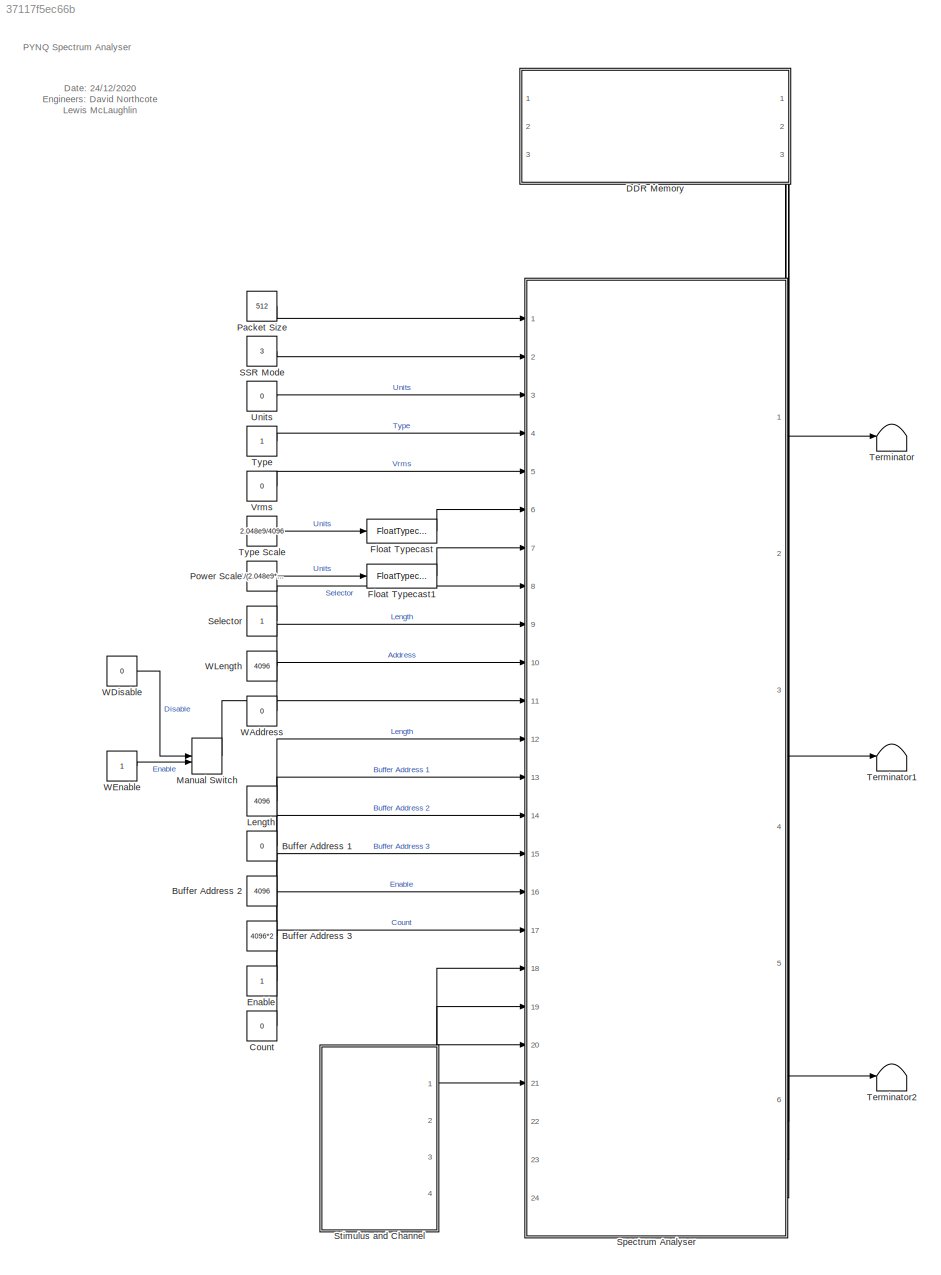
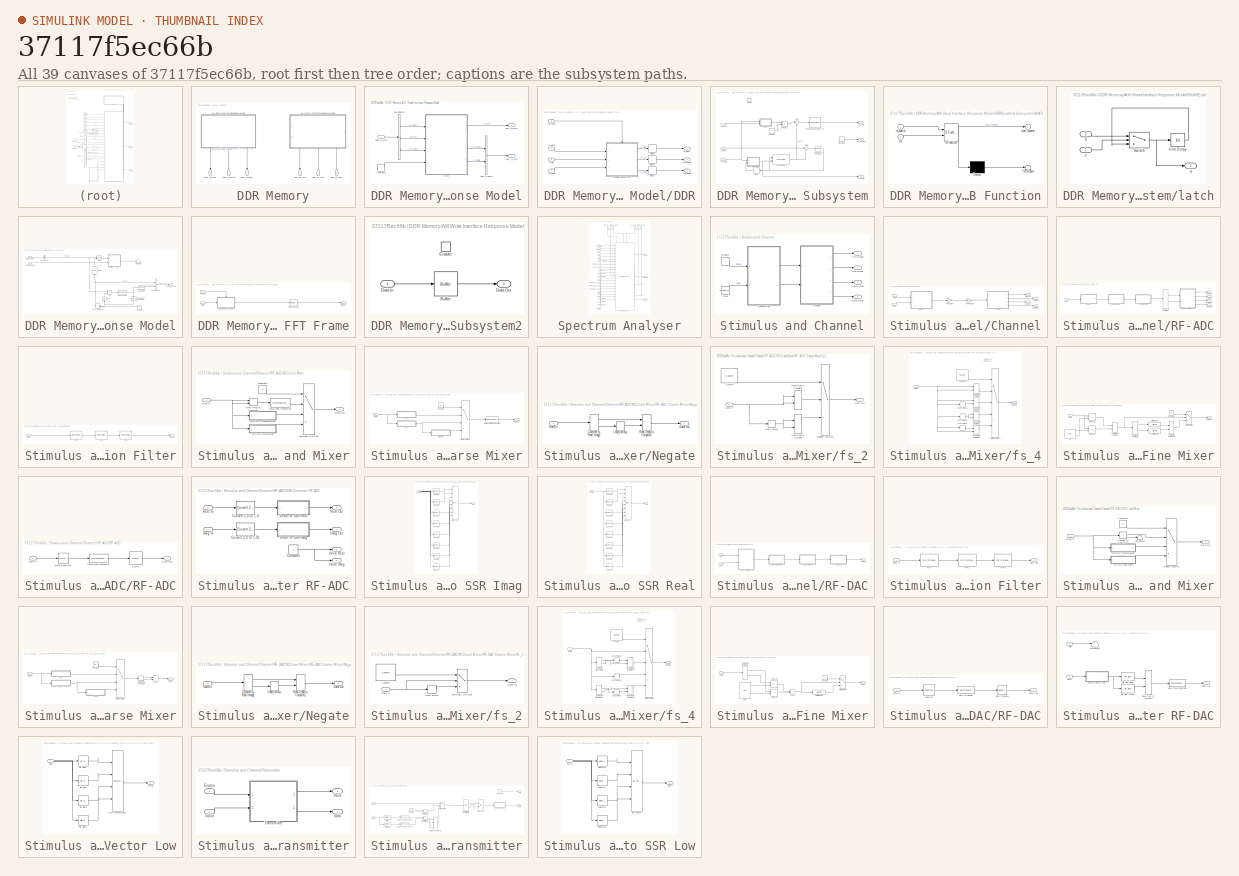
[diagram: thumbnail index - all 39 canvases of the model, root first then tree order]
MODEL slx_37117f5ec66b
KIND model
CONFIG AbsTol = auto
CONFIG EnableMultiTasking = off
CONFIG FixedStep = auto
CONFIG InitFcn = fs = 256e6;
CONFIG MaxStep = auto
CONFIG MinStep = auto
CONFIG RelTol = 1e-3
CONFIG SampleTimeConstraint = Unconstrained
CONFIG Solver = VariableStepAuto
CONFIG SolverName = VariableStepAuto
CONFIG StartTime = 0.0
CONFIG StopTime = 100000/256e6
BLOCK [Constant] Buffer Address 1
  OutDataTypeStr = uint32
  SampleTime = 1/fs
  Value = 0
BLOCK [Constant] Buffer Address 2
  OutDataTypeStr = uint32
  SampleTime = 1/fs
  Value = 4096
BLOCK [Constant] Buffer Address 3
  OutDataTypeStr = uint32
  SampleTime = 1/fs
  Value = 4096*2
BLOCK [Constant] Count
  OutDataTypeStr = uint32
  SampleTime = 1/fs
  Value = 0
BLOCK [SubSystem] DDR Memory
  NameLocation = top
  PortSchema = {"entries":[{"content":{"sides":[{"content":{"connectorIds":[]},"type":"ConnectorPlacement.EquallySpacedRectSide","uuid":"d9e4a1d3-1a90-455f-8481-c9ba23695512"},{"content":{"connectorIds":[],"side":"RIGHT"},"type":"ConnectorPlacement.EquallySpacedRectSide","uuid":"d5cbf6c4-ca28-4b6e-a385-26c8d45a1027"},{"content":{"connectorIds":[],"side":"TOP"},"type":"ConnectorPlacement.EquallySpacedRectSide","u...<+413ch>
  Ports = [3, 3]
  RequestExecContextInheritance = off
BLOCK [SubSystem] DDR Memory/AXI Read Interface Response Model
  NameLocation = top
  PortSchema = {"entries":[{"content":{"sides":[{"content":{"connectorIds":[]},"type":"ConnectorPlacement.EquallySpacedRectSide","uuid":"2b557e1e-8026-43d3-80e6-d6d80e534d60"},{"content":{"connectorIds":["Out1","In1","Out2"],"side":"RIGHT"},"type":"ConnectorPlacement.EquallySpacedRectSide","uuid":"d37ff7b5-bcab-46eb-bf2f-7b890d421095"},{"content":{"connectorIds":[],"side":"TOP"},"type":"ConnectorPlacement.Equall...<+250ch>
  Ports = [1, 2]
  RequestExecContextInheritance = off
  ShowPortLabels = FromPortBlockName
BLOCK [BusCreator] DDR Memory/AXI Read Interface Response Model/Bus Creator
  DisplayOption = bar
  InheritFromInputs = on
  Inputs = 2
  Ports = [2, 1]
BLOCK [BusSelector] DDR Memory/AXI Read Interface Response Model/Bus Selector
  OutputSignals = rd_addr,rd_len,rd_avalid
  Ports = [1, 3]
BLOCK [Constant] DDR Memory/AXI Read Interface Response Model/Constant3
  OutDataTypeStr = boolean
  SampleTime = -1
BLOCK [SubSystem] DDR Memory/AXI Read Interface Response Model/DDR
  Ports = [4, 3]
  RequestExecContextInheritance = off
BLOCK [Delay] DDR Memory/AXI Read Interface Response Model/DDR/Delay
  DelayLength = 3
  InputPortMap = u0
  Ports = [1, 1]
BLOCK [Delay] DDR Memory/AXI Read Interface Response Model/DDR/Delay1
  DelayLength = 3
  InputPortMap = u0
  Ports = [1, 1]
BLOCK [Delay] DDR Memory/AXI Read Interface Response Model/DDR/Delay2
  DelayLength = 1
  InputPortMap = u0
  Ports = [1, 1]
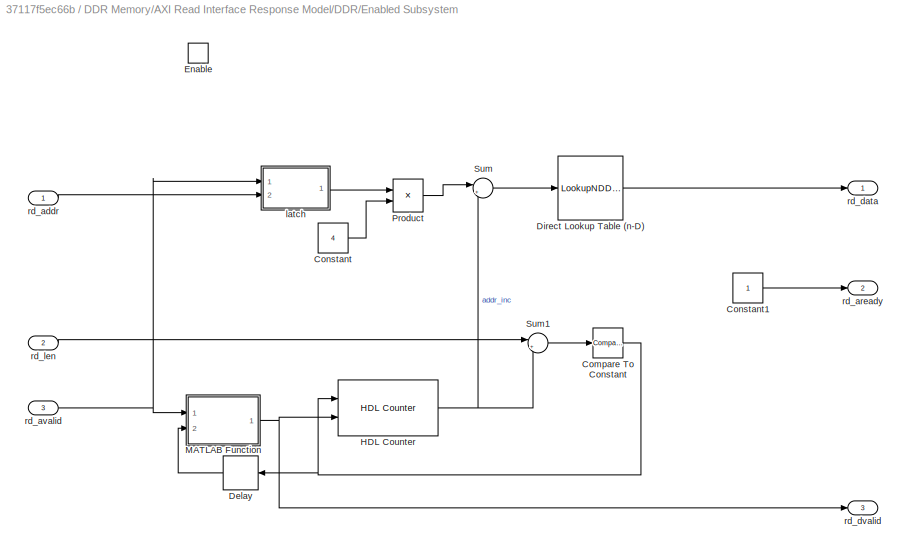
BLOCK [SubSystem] DDR Memory/AXI Read Interface Response Model/DDR/Enabled Subsystem
  Ports = [3, 3, 1]
  RequestExecContextInheritance = off
  TreatAsAtomicUnit = on
BLOCK [Reference] DDR Memory/AXI Read Interface Response Model/DDR/Enabled Subsystem/Compare To Constant  REF=simulink/Logic and Bit
Operations/Compare
To Constant
  Ports = [1, 1]
  SourceBlock = simulink/Logic and Bit\nOperations/Compare\nTo Constant
  SourceProductBaseCode = SL
  SourceType = Compare To Constant
BLOCK [Constant] DDR Memory/AXI Read Interface Response Model/DDR/Enabled Subsystem/Constant
  SampleTime = -1
  Value = 4
BLOCK [Constant] DDR Memory/AXI Read Interface Response Model/DDR/Enabled Subsystem/Constant1
  OutDataTypeStr = boolean
  SampleTime = -1
BLOCK [Delay] DDR Memory/AXI Read Interface Response Model/DDR/Enabled Subsystem/Delay
  DelayLength = 1
  InputPortMap = u0
  NameLocation = top
  Ports = [1, 1]
BLOCK [LookupNDDirect] DDR Memory/AXI Read Interface Response Model/DDR/Enabled Subsystem/Direct Lookup Table (n-D)
  DiagnosticForOutOfRangeInput = Error
  NumberOfTableDimensions = 1
  Ports = [1, 1]
  Table = DDR_DATA
BLOCK [EnablePort] DDR Memory/AXI Read Interface Response Model/DDR/Enabled Subsystem/Enable
  Ports = []
BLOCK [Reference] DDR Memory/AXI Read Interface Response Model/DDR/Enabled Subsystem/HDL Counter  REF=hdlsllib/Sources/HDL Counter
  Ports = [2, 1]
  SourceBlock = hdlsllib/Sources/HDL Counter
  SourceProductBaseCode = SL
  SourceType = HDL Counter
BLOCK [SubSystem] DDR Memory/AXI Read Interface Response Model/DDR/Enabled Subsystem/MATLAB Function
  ErrorFcn = Stateflow.Translate.translate
  PermitHierarchicalResolution = ExplicitOnly
  Ports = [2, 1]
  RequestExecContextInheritance = off
  SFBlockType = MATLAB Function
  TreatAsAtomicUnit = on
BLOCK [Demux] DDR Memory/AXI Read Interface Response Model/DDR/Enabled Subsystem/MATLAB Function/ Demux 
  Outputs = 1
  Ports = [1, 1]
BLOCK [S-Function] DDR Memory/AXI Read Interface Response Model/DDR/Enabled Subsystem/MATLAB Function/ SFunction 
  EnableBusSupport = on
  FunctionName = sf_sfun
  PortCounts = [2 2]
  Ports = [2, 2]
  SFcnIsStateOwnerBlock = off
  SFunctionDeploymentMode = off
  Tag = Stateflow S-Function 1
BLOCK [Terminator] DDR Memory/AXI Read Interface Response Model/DDR/Enabled Subsystem/MATLAB Function/ Terminator 
BLOCK [Inport] DDR Memory/AXI Read Interface Response Model/DDR/Enabled Subsystem/MATLAB Function/rd_avalid
BLOCK [Inport] DDR Memory/AXI Read Interface Response Model/DDR/Enabled Subsystem/MATLAB Function/rst
  Port = 2
BLOCK [Outport] DDR Memory/AXI Read Interface Response Model/DDR/Enabled Subsystem/MATLAB Function/start_counter
  VectorParamsAs1DForOutWhenUnconnected = off
BLOCK [Product] DDR Memory/AXI Read Interface Response Model/DDR/Enabled Subsystem/Product
  Inputs = */
  Ports = [2, 1]
BLOCK [Sum] DDR Memory/AXI Read Interface Response Model/DDR/Enabled Subsystem/Sum
  Inputs = |++
  OutDataTypeStr = uint32
  Ports = [2, 1]
BLOCK [Sum] DDR Memory/AXI Read Interface Response Model/DDR/Enabled Subsystem/Sum1
  Inputs = |+-
  Ports = [2, 1]
BLOCK [SubSystem] DDR Memory/AXI Read Interface Response Model/DDR/Enabled Subsystem/latch
  Ports = [2, 1]
  RequestExecContextInheritance = off
BLOCK [Switch] DDR Memory/AXI Read Interface Response Model/DDR/Enabled Subsystem/latch/Switch
  Criteria = u2 > Threshold
  InputSameDT = off
  SaturateOnIntegerOverflow = off
BLOCK [UnitDelay] DDR Memory/AXI Read Interface Response Model/DDR/Enabled Subsystem/latch/Unit Delay
  HasFrameUpgradeWarning = on
  SampleTime = -1
BLOCK [Inport] DDR Memory/AXI Read Interface Response Model/DDR/Enabled Subsystem/latch/d
  Port = 2
BLOCK [Inport] DDR Memory/AXI Read Interface Response Model/DDR/Enabled Subsystem/latch/e
  OutDataTypeStr = boolean
BLOCK [Outport] DDR Memory/AXI Read Interface Response Model/DDR/Enabled Subsystem/latch/q
  VectorParamsAs1DForOutWhenUnconnected = off
BLOCK [Inport] DDR Memory/AXI Read Interface Response Model/DDR/Enabled Subsystem/rd_addr
BLOCK [Outport] DDR Memory/AXI Read Interface Response Model/DDR/Enabled Subsystem/rd_aready
  Port = 2
  VectorParamsAs1DForOutWhenUnconnected = off
BLOCK [Inport] DDR Memory/AXI Read Interface Response Model/DDR/Enabled Subsystem/rd_avalid
  Port = 3
BLOCK [Outport] DDR Memory/AXI Read Interface Response Model/DDR/Enabled Subsystem/rd_data
  VectorParamsAs1DForOutWhenUnconnected = off
BLOCK [Outport] DDR Memory/AXI Read Interface Response Model/DDR/Enabled Subsystem/rd_dvalid
  Port = 3
  VectorParamsAs1DForOutWhenUnconnected = off
BLOCK [Inport] DDR Memory/AXI Read Interface Response Model/DDR/Enabled Subsystem/rd_len
  Port = 2
BLOCK [Inport] DDR Memory/AXI Read Interface Response Model/DDR/rd_addr
BLOCK [Outport] DDR Memory/AXI Read Interface Response Model/DDR/rd_aready
  Port = 2
  VectorParamsAs1DForOutWhenUnconnected = off
BLOCK [Inport] DDR Memory/AXI Read Interface Response Model/DDR/rd_avalid
  Port = 3
BLOCK [Outport] DDR Memory/AXI Read Interface Response Model/DDR/rd_data
  VectorParamsAs1DForOutWhenUnconnected = off
BLOCK [Outport] DDR Memory/AXI Read Interface Response Model/DDR/rd_dvalid
  Port = 3
  VectorParamsAs1DForOutWhenUnconnected = off
BLOCK [Inport] DDR Memory/AXI Read Interface Response Model/DDR/rd_len
  Port = 2
BLOCK [Inport] DDR Memory/AXI Read Interface Response Model/DDR/rd_ready
  Port = 4
BLOCK [Outport] DDR Memory/AXI Read Interface Response Model/axim_rd_data
  VectorParamsAs1DForOutWhenUnconnected = off
BLOCK [Inport] DDR Memory/AXI Read Interface Response Model/axim_rd_m2s
BLOCK [Outport] DDR Memory/AXI Read Interface Response Model/axim_rd_s2m
  Port = 2
  VectorParamsAs1DForOutWhenUnconnected = off
BLOCK [SubSystem] DDR Memory/AXI Write Interface Response Model
  NameLocation = top
  PortSchema = {"entries":[{"content":{"sides":[{"content":{"connectorIds":[]},"type":"ConnectorPlacement.EquallySpacedRectSide","uuid":"6953abbe-a6d5-4686-b276-b89fe5e6bb23"},{"content":{"connectorIds":[],"side":"RIGHT"},"type":"ConnectorPlacement.EquallySpacedRectSide","uuid":"539ff6ac-c243-4534-87d0-888ff9534a8b"},{"content":{"connectorIds":[],"side":"TOP"},"type":"ConnectorPlacement.EquallySpacedRectSide","u...<+393ch>
  Ports = [2, 1]
  RequestExecContextInheritance = off
BLOCK [Logic] DDR Memory/AXI Write Interface Response Model/AND
  AllPortsSameDT = off
  IconShape = distinctive
  OutDataTypeStr = boolean
  Ports = [2, 1]
BLOCK [BusCreator] DDR Memory/AXI Write Interface Response Model/Bus Creator2
  DisplayOption = bar
  InheritFromInputs = on
  Inputs = 2
  Ports = [2, 1]
BLOCK [BusSelector] DDR Memory/AXI Write Interface Response Model/Bus Selector
  OutputSignals = wr_valid
  Ports = [1, 1]
BLOCK [Reference] DDR Memory/AXI Write Interface Response Model/Compare To Constant  REF=simulink/Logic and Bit
Operations/Compare
To Constant
  Ports = [1, 1]
  SourceBlock = simulink/Logic and Bit\nOperations/Compare\nTo Constant
  SourceProductBaseCode = SL
  SourceType = Compare To Constant
BLOCK [Reference] DDR Memory/AXI Write Interface Response Model/Compare To Constant3  REF=simulink/Logic and Bit
Operations/Compare
To Constant
  NameLocation = left
  Ports = [1, 1]
  SourceBlock = simulink/Logic and Bit\nOperations/Compare\nTo Constant
  SourceProductBaseCode = SL
  SourceType = Compare To Constant
BLOCK [Constant] DDR Memory/AXI Write Interface Response Model/Constant6
  OutDataTypeStr = boolean
  SampleTime = -1
  Value = 0
BLOCK [Delay] DDR Memory/AXI Write Interface Response Model/Delay
  DelayLength = 1
  InitialCondition = 0
  InputPortMap = u0
  NameLocation = right
  Ports = [1, 1]
  UseCircularBuffer = on
  UserDataPersistent = on
BLOCK [Reference] DDR Memory/AXI Write Interface Response Model/HDL Counter  REF=hdlsllib/Sources/HDL Counter
  Ports = [1, 1]
  SourceBlock = hdlsllib/Sources/HDL Counter
  SourceProductBaseCode = SL
  SourceType = HDL Counter
BLOCK [ManualSwitch] DDR Memory/AXI Write Interface Response Model/Manual Switch1
  NameLocation = top
BLOCK [Logic] DDR Memory/AXI Write Interface Response Model/NOT
  AllPortsSameDT = off
  IconShape = distinctive
  NameLocation = right
  Operator = NOT
  OutDataTypeStr = boolean
  Ports = [1, 1]
BLOCK [Logic] DDR Memory/AXI Write Interface Response Model/OR
  AllPortsSameDT = off
  IconShape = distinctive
  Operator = OR
  OutDataTypeStr = boolean
  Ports = [2, 1]
BLOCK [SubSystem] DDR Memory/AXI Write Interface Response Model/Serial to FFT Frame
  Ports = [2, 1]
  RequestExecContextInheritance = off
BLOCK [Inport] DDR Memory/AXI Write Interface Response Model/Serial to FFT Frame/Data In
  Port = 2
BLOCK [Outport] DDR Memory/AXI Write Interface Response Model/Serial to FFT Frame/Data Out
BLOCK [Inport] DDR Memory/AXI Write Interface Response Model/Serial to FFT Frame/Enable
BLOCK [SubSystem] DDR Memory/AXI Write Interface Response Model/Serial to FFT Frame/Enabled Subsystem2
  Ports = [1, 1, 1]
  RequestExecContextInheritance = off
  TreatAsAtomicUnit = on
BLOCK [Buffer] DDR Memory/AXI Write Interface Response Model/Serial to FFT Frame/Enabled Subsystem2/Buffer
  N = N
  OutputFrames = off
BLOCK [Inport] DDR Memory/AXI Write Interface Response Model/Serial to FFT Frame/Enabled Subsystem2/Data In
BLOCK [Outport] DDR Memory/AXI Write Interface Response Model/Serial to FFT Frame/Enabled Subsystem2/Data Out
BLOCK [EnablePort] DDR Memory/AXI Write Interface Response Model/Serial to FFT Frame/Enabled Subsystem2/Enable
  Ports = []
BLOCK [FloatTypecast] DDR Memory/AXI Write Interface Response Model/Serial to FFT Frame/Float Typecast
BLOCK [Terminator] DDR Memory/AXI Write Interface Response Model/Terminator
BLOCK [Inport] DDR Memory/AXI Write Interface Response Model/axim_wr_data
  Port = 2
BLOCK [Inport] DDR Memory/AXI Write Interface Response Model/axim_wr_m2s
BLOCK [Outport] DDR Memory/AXI Write Interface Response Model/axim_wr_s2m
BLOCK [Outport] DDR Memory/axim_rd_data
  Port = 2
BLOCK [Inport] DDR Memory/axim_rd_m2s
BLOCK [Outport] DDR Memory/axim_rd_s2m
BLOCK [Inport] DDR Memory/axim_wr_data
  Port = 3
BLOCK [Inport] DDR Memory/axim_wr_m2s
  Port = 2
BLOCK [Outport] DDR Memory/axim_wr_s2m
  Port = 3
BLOCK [Constant] Enable
  OutDataTypeStr = uint32
  SampleTime = 1/fs
BLOCK [FloatTypecast] Float Typecast
BLOCK [FloatTypecast] Float Typecast1
BLOCK [Constant] Length
  OutDataTypeStr = uint32
  SampleTime = 1/fs
  Value = 4096
BLOCK [ManualSwitch] Manual Switch
  CurrentSetting = 0
BLOCK [Constant] Packet Size
  OutDataTypeStr = uint32
  SampleTime = -1
  Value = 512
BLOCK [Constant] Power Scale
  OutDataTypeStr = single
  SampleTime = -1
  Value = 1/(2.048e9*4096)
BLOCK [Constant] SSR Mode
  OutDataTypeStr = uint32
  SampleTime = -1
  Value = 3
BLOCK [Constant] Selector
  OutDataTypeStr = uint32
  SampleTime = -1
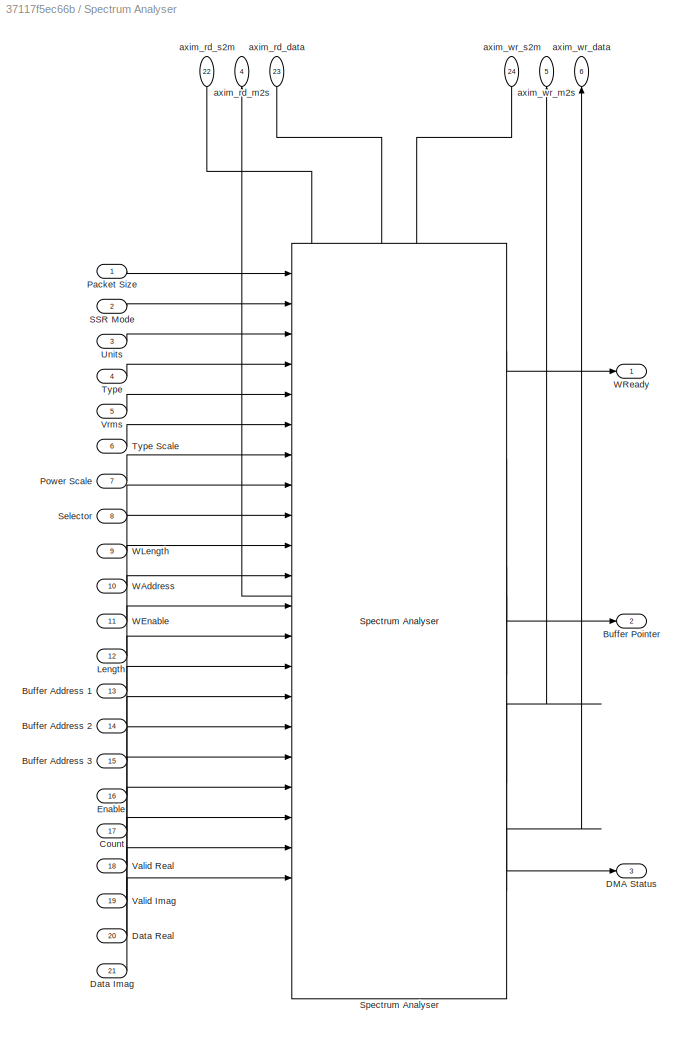
BLOCK [SubSystem] Spectrum Analyser
  PortSchema = {"entries":[{"content":{"sides":[{"content":{"connectorIds":["In1","In2","In3","In4","In5","In6","In7","In8","In9","In10","In11","In12","In13","In14","In15","In16","In17","In18","In19","In20","In21"]},"type":"ConnectorPlacement.EquallySpacedRectSide","uuid":"cc2cc642-11de-4ac0-af05-03fa45094956"},{"content":{"connectorIds":["Out1","Out2","Out3"],"side":"RIGHT"},"type":"ConnectorPlacement.EquallySp...<+429ch>
  Ports = [24, 6]
  RequestExecContextInheritance = off
  TreatAsAtomicUnit = on
BLOCK [Inport] Spectrum Analyser/Buffer Address 1
  Port = 13
BLOCK [Inport] Spectrum Analyser/Buffer Address 2
  Port = 14
BLOCK [Inport] Spectrum Analyser/Buffer Address 3
  Port = 15
BLOCK [Outport] Spectrum Analyser/Buffer Pointer
  Port = 2
BLOCK [Inport] Spectrum Analyser/Count
  Port = 17
BLOCK [Outport] Spectrum Analyser/DMA Status
  Port = 3
BLOCK [Inport] Spectrum Analyser/Data Imag
  Port = 21
BLOCK [Inport] Spectrum Analyser/Data Real
  Port = 20
BLOCK [Inport] Spectrum Analyser/Enable
  Port = 16
BLOCK [Inport] Spectrum Analyser/Length
  Port = 12
BLOCK [Inport] Spectrum Analyser/Packet Size
BLOCK [Inport] Spectrum Analyser/Power Scale
  Port = 7
BLOCK [Inport] Spectrum Analyser/SSR Mode
  Port = 2
BLOCK [Inport] Spectrum Analyser/Selector
  Port = 8
BLOCK [Reference] Spectrum Analyser/Spectrum Analyser  REF=slib_spectrum_analyser/Spectrum Analyser  (lib defined in slx_9446f48c21c4, slx_d429541b2c0d)
  Ports = [24, 6]
  SourceBlock = slib_spectrum_analyser/Spectrum Analyser
  SourceType = SubSystem
BLOCK [Inport] Spectrum Analyser/Type
  Port = 4
BLOCK [Inport] Spectrum Analyser/Type Scale
  Port = 6
BLOCK [Inport] Spectrum Analyser/Units
  Port = 3
BLOCK [Inport] Spectrum Analyser/Valid Imag
  Port = 19
BLOCK [Inport] Spectrum Analyser/Valid Real
  Port = 18
BLOCK [Inport] Spectrum Analyser/Vrms
  Port = 5
BLOCK [Inport] Spectrum Analyser/WAddress
  Port = 10
BLOCK [Inport] Spectrum Analyser/WEnable
  Port = 11
BLOCK [Inport] Spectrum Analyser/WLength
  Port = 9
BLOCK [Outport] Spectrum Analyser/WReady
BLOCK [Inport] Spectrum Analyser/axim_rd_data
  NameLocation = right
  Port = 23
BLOCK [Outport] Spectrum Analyser/axim_rd_m2s
  NameLocation = top
  Port = 4
BLOCK [Inport] Spectrum Analyser/axim_rd_s2m
  NameLocation = left
  Port = 22
BLOCK [Outport] Spectrum Analyser/axim_wr_data
  NameLocation = right
  Port = 6
BLOCK [Outport] Spectrum Analyser/axim_wr_m2s
  NameLocation = top
  Port = 5
BLOCK [Inport] Spectrum Analyser/axim_wr_s2m
  NameLocation = left
  Port = 24
BLOCK [SubSystem] Stimulus and Channel
  Ports = [0, 4]
  RequestExecContextInheritance = off
BLOCK [SubSystem] Stimulus and Channel/Channel
  Ports = [2, 4]
  RequestExecContextInheritance = off
BLOCK [Inport] Stimulus and Channel/Channel/Data
  Port = 2
BLOCK [Outport] Stimulus and Channel/Channel/Data Imag
  Port = 4
BLOCK [Outport] Stimulus and Channel/Channel/Data Real
  Port = 2
BLOCK [SubSystem] Stimulus and Channel/Channel/RF-ADC
  Ports = [1, 4]
  RequestExecContextInheritance = off
BLOCK [ComplexToRealImag] Stimulus and Channel/Channel/RF-ADC/Complex to Real-Imag
  Ports = [1, 2]
BLOCK [Outport] Stimulus and Channel/Channel/RF-ADC/Data Imag
  Port = 4
  VectorParamsAs1DForOutWhenUnconnected = off
BLOCK [Inport] Stimulus and Channel/Channel/RF-ADC/Data In
BLOCK [Outport] Stimulus and Channel/Channel/RF-ADC/Data Real
  Port = 3
  VectorParamsAs1DForOutWhenUnconnected = off
BLOCK [SubSystem] Stimulus and Channel/Channel/RF-ADC/Decimation Filter
  Ports = [1, 1]
  RequestExecContextInheritance = off
BLOCK [Inport] Stimulus and Channel/Channel/RF-ADC/Decimation Filter/Data In
BLOCK [Outport] Stimulus and Channel/Channel/RF-ADC/Decimation Filter/Data Out
  VectorParamsAs1DForOutWhenUnconnected = off
BLOCK [Reference] Stimulus and Channel/Channel/RF-ADC/Decimation Filter/FIR 0  REF=dspmlti4/FIR
Decimation
  Ports = [1, 1]
  SourceBlock = dspmlti4/FIR\nDecimation
  SourceProductBaseCode = DS
  SourceType = FIR Decimation
  UserDataPersistent = on
BLOCK [Reference] Stimulus and Channel/Channel/RF-ADC/Decimation Filter/FIR 1  REF=dspmlti4/FIR
Decimation
  Commented = through
  Ports = [1, 1]
  SourceBlock = dspmlti4/FIR\nDecimation
  SourceProductBaseCode = DS
  SourceType = FIR Decimation
  UserDataPersistent = on
BLOCK [Reference] Stimulus and Channel/Channel/RF-ADC/Decimation Filter/FIR 2  REF=dspmlti4/FIR
Decimation
  Commented = through
  Ports = [1, 1]
  SourceBlock = dspmlti4/FIR\nDecimation
  SourceProductBaseCode = DS
  SourceType = FIR Decimation
  UserDataPersistent = on
BLOCK [SubSystem] Stimulus and Channel/Channel/RF-ADC/NCO and Mixer
  Ports = [1, 1]
  RequestExecContextInheritance = off
BLOCK [Constant] Stimulus and Channel/Channel/RF-ADC/NCO and Mixer/Constant1
  OutDataTypeStr = fixdt(0,2,0)
  SampleTime = -1
  Value = m
BLOCK [Inport] Stimulus and Channel/Channel/RF-ADC/NCO and Mixer/Data In
BLOCK [Outport] Stimulus and Channel/Channel/RF-ADC/NCO and Mixer/Data Out
  VectorParamsAs1DForOutWhenUnconnected = off
BLOCK [DataTypeConversion] Stimulus and Channel/Channel/RF-ADC/NCO and Mixer/Data Type Conversion
  OutDataTypeStr = fixdt(1,16,15)
  RndMeth = Floor
  SaturateOnIntegerOverflow = off
BLOCK [MultiPortSwitch] Stimulus and Channel/Channel/RF-ADC/NCO and Mixer/Multiport Switch1
  DataPortOrder = Zero-based contiguous
  InputSameDT = off
  Ports = [4, 1]
  SaturateOnIntegerOverflow = off
  zeroidx = on
BLOCK [SubSystem] Stimulus and Channel/Channel/RF-ADC/NCO and Mixer/RF-ADC Coarse Mixer
  Ports = [1, 1]
  RequestExecContextInheritance = off
BLOCK [Constant] Stimulus and Channel/Channel/RF-ADC/NCO and Mixer/RF-ADC Coarse Mixer/Constant
  OutDataTypeStr = fixdt(0,2,0)
  SampleTime = -1
  Value = mc
BLOCK [Inport] Stimulus and Channel/Channel/RF-ADC/NCO and Mixer/RF-ADC Coarse Mixer/Data In
BLOCK [Outport] Stimulus and Channel/Channel/RF-ADC/NCO and Mixer/RF-ADC Coarse Mixer/Data Out
  VectorParamsAs1DForOutWhenUnconnected = off
BLOCK [DataTypeConversion] Stimulus and Channel/Channel/RF-ADC/NCO and Mixer/RF-ADC Coarse Mixer/Data Type Conversion
  OutDataTypeStr = fixdt(1,16,15)
  RndMeth = Floor
  SaturateOnIntegerOverflow = off
BLOCK [MultiPortSwitch] Stimulus and Channel/Channel/RF-ADC/NCO and Mixer/RF-ADC Coarse Mixer/Multiport Switch1
  DataPortOrder = Zero-based contiguous
  InputSameDT = off
  Ports = [4, 1]
  SaturateOnIntegerOverflow = off
  zeroidx = on
BLOCK [SubSystem] Stimulus and Channel/Channel/RF-ADC/NCO and Mixer/RF-ADC Coarse Mixer/Negate
  Ports = [1, 1]
  RequestExecContextInheritance = off
BLOCK [ComplexToRealImag] Stimulus and Channel/Channel/RF-ADC/NCO and Mixer/RF-ADC Coarse Mixer/Negate/Complex to Real-Imag2
  Ports = [1, 2]
BLOCK [Inport] Stimulus and Channel/Channel/RF-ADC/NCO and Mixer/RF-ADC Coarse Mixer/Negate/Data In
BLOCK [Outport] Stimulus and Channel/Channel/RF-ADC/NCO and Mixer/RF-ADC Coarse Mixer/Negate/Data Out
  VectorParamsAs1DForOutWhenUnconnected = off
BLOCK [RealImagToComplex] Stimulus and Channel/Channel/RF-ADC/NCO and Mixer/RF-ADC Coarse Mixer/Negate/Real-Imag to Complex1
  Ports = [2, 1]
BLOCK [UnaryMinus] Stimulus and Channel/Channel/RF-ADC/NCO and Mixer/RF-ADC Coarse Mixer/Negate/Unary Minus
BLOCK [SubSystem] Stimulus and Channel/Channel/RF-ADC/NCO and Mixer/RF-ADC Coarse Mixer/fs_2
  Ports = [1, 1]
  RequestExecContextInheritance = off
BLOCK [Reference] Stimulus and Channel/Channel/RF-ADC/NCO and Mixer/RF-ADC Coarse Mixer/fs_2/Counter  REF=dspswit3/Counter
  Ports = [0, 1]
  SourceBlock = dspswit3/Counter
  SourceProductBaseCode = DS
  SourceType = Counter
BLOCK [Inport] Stimulus and Channel/Channel/RF-ADC/NCO and Mixer/RF-ADC Coarse Mixer/fs_2/Data In
BLOCK [Outport] Stimulus and Channel/Channel/RF-ADC/NCO and Mixer/RF-ADC Coarse Mixer/fs_2/Data Out
  VectorParamsAs1DForOutWhenUnconnected = off
BLOCK [MultiPortSwitch] Stimulus and Channel/Channel/RF-ADC/NCO and Mixer/RF-ADC Coarse Mixer/fs_2/Multiport Switch2
  DataPortOrder = Zero-based contiguous
  InputSameDT = off
  Inputs = 2
  Ports = [3, 1]
  SaturateOnIntegerOverflow = off
  zeroidx = on
BLOCK [RealImagToComplex] Stimulus and Channel/Channel/RF-ADC/NCO and Mixer/RF-ADC Coarse Mixer/fs_2/Real-Imag to Complex
  Ports = [2, 1]
BLOCK [RealImagToComplex] Stimulus and Channel/Channel/RF-ADC/NCO and Mixer/RF-ADC Coarse Mixer/fs_2/Real-Imag to Complex1
  Ports = [2, 1]
BLOCK [UnaryMinus] Stimulus and Channel/Channel/RF-ADC/NCO and Mixer/RF-ADC Coarse Mixer/fs_2/Unary Minus1
BLOCK [SubSystem] Stimulus and Channel/Channel/RF-ADC/NCO and Mixer/RF-ADC Coarse Mixer/fs_4
  Ports = [1, 1]
  RequestExecContextInheritance = off
BLOCK [Reference] Stimulus and Channel/Channel/RF-ADC/NCO and Mixer/RF-ADC Coarse Mixer/fs_4/Counter  REF=dspswit3/Counter
  Ports = [0, 1]
  SourceBlock = dspswit3/Counter
  SourceProductBaseCode = DS
  SourceType = Counter
BLOCK [Inport] Stimulus and Channel/Channel/RF-ADC/NCO and Mixer/RF-ADC Coarse Mixer/fs_4/Data In
BLOCK [Outport] Stimulus and Channel/Channel/RF-ADC/NCO and Mixer/RF-ADC Coarse Mixer/fs_4/Data Out
  VectorParamsAs1DForOutWhenUnconnected = off
BLOCK [MultiPortSwitch] Stimulus and Channel/Channel/RF-ADC/NCO and Mixer/RF-ADC Coarse Mixer/fs_4/Multiport Switch2
  DataPortOrder = Zero-based contiguous
  InputSameDT = off
  Inputs = 4
  Ports = [5, 1]
  SaturateOnIntegerOverflow = off
  zeroidx = on
BLOCK [RealImagToComplex] Stimulus and Channel/Channel/RF-ADC/NCO and Mixer/RF-ADC Coarse Mixer/fs_4/Real-Imag to Complex1
  Ports = [2, 1]
BLOCK [RealImagToComplex] Stimulus and Channel/Channel/RF-ADC/NCO and Mixer/RF-ADC Coarse Mixer/fs_4/Real-Imag to Complex2
  Ports = [2, 1]
BLOCK [RealImagToComplex] Stimulus and Channel/Channel/RF-ADC/NCO and Mixer/RF-ADC Coarse Mixer/fs_4/Real-Imag to Complex3
  Ports = [2, 1]
BLOCK [RealImagToComplex] Stimulus and Channel/Channel/RF-ADC/NCO and Mixer/RF-ADC Coarse Mixer/fs_4/Real-Imag to Complex4
  Ports = [2, 1]
BLOCK [UnaryMinus] Stimulus and Channel/Channel/RF-ADC/NCO and Mixer/RF-ADC Coarse Mixer/fs_4/Unary Minus
BLOCK [UnaryMinus] Stimulus and Channel/Channel/RF-ADC/NCO and Mixer/RF-ADC Coarse Mixer/fs_4/Unary Minus1
BLOCK [UnaryMinus] Stimulus and Channel/Channel/RF-ADC/NCO and Mixer/RF-ADC Coarse Mixer/fs_4/Unary Minus2
BLOCK [SubSystem] Stimulus and Channel/Channel/RF-ADC/NCO and Mixer/RF-ADC Fine Mixer
  Ports = [1, 1]
  RequestExecContextInheritance = off
BLOCK [ComplexToRealImag] Stimulus and Channel/Channel/RF-ADC/NCO and Mixer/RF-ADC Fine Mixer/Complex to Real-Imag
  Ports = [1, 2]
BLOCK [Constant] Stimulus and Channel/Channel/RF-ADC/NCO and Mixer/RF-ADC Fine Mixer/Constant
  SampleTime = -1
  Value = 0
BLOCK [Inport] Stimulus and Channel/Channel/RF-ADC/NCO and Mixer/RF-ADC Fine Mixer/Data In
BLOCK [Outport] Stimulus and Channel/Channel/RF-ADC/NCO and Mixer/RF-ADC Fine Mixer/Data Out
  VectorParamsAs1DForOutWhenUnconnected = off
BLOCK [MultiPortSwitch] Stimulus and Channel/Channel/RF-ADC/NCO and Mixer/RF-ADC Fine Mixer/Multiport Switch
  DataPortOrder = Zero-based contiguous
  InputSameDT = off
  Inputs = 2
  Ports = [3, 1]
  SaturateOnIntegerOverflow = off
  zeroidx = on
BLOCK [Reference] Stimulus and Channel/Channel/RF-ADC/NCO and Mixer/RF-ADC Fine Mixer/NCO  REF=dspsigops/NCO
  Ports = [0, 2]
  SourceBlock = dspsigops/NCO
  SourceProductBaseCode = DS
  SourceType = NCO
BLOCK [Product] Stimulus and Channel/Channel/RF-ADC/NCO and Mixer/RF-ADC Fine Mixer/Product
  OutDataTypeStr = fixdt(1,16,15)
  Ports = [2, 1]
BLOCK [Product] Stimulus and Channel/Channel/RF-ADC/NCO and Mixer/RF-ADC Fine Mixer/Product1
  OutDataTypeStr = fixdt(1,16,15)
  Ports = [2, 1]
BLOCK [RealImagToComplex] Stimulus and Channel/Channel/RF-ADC/NCO and Mixer/RF-ADC Fine Mixer/Real-Imag to Complex
  Ports = [2, 1]
BLOCK [RealImagToComplex] Stimulus and Channel/Channel/RF-ADC/NCO and Mixer/RF-ADC Fine Mixer/Real-Imag to Complex1
  Ports = [2, 1]
BLOCK [ArithShift] Stimulus and Channel/Channel/RF-ADC/NCO and Mixer/RF-ADC Fine Mixer/Shift Arithmetic
  BitShiftDirection = Right
  BitShiftNumber = 1
  InputPortMap = u0
  Ports = [1, 1]
BLOCK [ArithShift] Stimulus and Channel/Channel/RF-ADC/NCO and Mixer/RF-ADC Fine Mixer/Shift Arithmetic1
  BitShiftDirection = Right
  BitShiftNumber = 1
  InputPortMap = u0
  Ports = [1, 1]
BLOCK [RealImagToComplex] Stimulus and Channel/Channel/RF-ADC/NCO and Mixer/Real-Imag to Complex
  Ports = [2, 1]
BLOCK [SubSystem] Stimulus and Channel/Channel/RF-ADC/RF-ADC
  Ports = [1, 1]
  RequestExecContextInheritance = off
BLOCK [Buffer] Stimulus and Channel/Channel/RF-ADC/RF-ADC/Buffer
  N = ssr
  OutputFrames = off
BLOCK [Inport] Stimulus and Channel/Channel/RF-ADC/RF-ADC/Data In
BLOCK [Outport] Stimulus and Channel/Channel/RF-ADC/RF-ADC/Data Out
  VectorParamsAs1DForOutWhenUnconnected = off
BLOCK [DataTypeConversion] Stimulus and Channel/Channel/RF-ADC/RF-ADC/Data Type Conversion
  OutDataTypeStr = fixdt(1,12,11)
  RndMeth = Floor
BLOCK [RateTransition] Stimulus and Channel/Channel/RF-ADC/RF-ADC/Rate Transition
  OutPortSampleTime = 1/fs
BLOCK [SubSystem] Stimulus and Channel/Channel/RF-ADC/SSR Converter RF-ADC
  Ports = [2, 4]
  RequestExecContextInheritance = off
BLOCK [Constant] Stimulus and Channel/Channel/RF-ADC/SSR Converter RF-ADC/Constant
  OutDataTypeStr = boolean
  SampleTime = -1
BLOCK [Reference] Stimulus and Channel/Channel/RF-ADC/SSR Converter RF-ADC/Convert 2-D to 1-D  REF=dspsigattribs/Convert 2-D to 1-D
  Ports = [1, 1]
  SourceBlock = dspsigattribs/Convert 2-D to 1-D
  SourceProductBaseCode = DS
  SourceType = Convert 2-D to 1-D
BLOCK [Reference] Stimulus and Channel/Channel/RF-ADC/SSR Converter RF-ADC/Convert 2-D to 1-D1  REF=dspsigattribs/Convert 2-D to 1-D
  Ports = [1, 1]
  SourceBlock = dspsigattribs/Convert 2-D to 1-D
  SourceProductBaseCode = DS
  SourceType = Convert 2-D to 1-D
BLOCK [Inport] Stimulus and Channel/Channel/RF-ADC/SSR Converter RF-ADC/Imag In
  Port = 2
BLOCK [Outport] Stimulus and Channel/Channel/RF-ADC/SSR Converter RF-ADC/Imag Out
  Port = 4
BLOCK [Inport] Stimulus and Channel/Channel/RF-ADC/SSR Converter RF-ADC/Real In
BLOCK [Outport] Stimulus and Channel/Channel/RF-ADC/SSR Converter RF-ADC/Real Out
  Port = 3
BLOCK [Outport] Stimulus and Channel/Channel/RF-ADC/SSR Converter RF-ADC/Valid Imag
  Port = 2
BLOCK [Outport] Stimulus and Channel/Channel/RF-ADC/SSR Converter RF-ADC/Valid Real
BLOCK [SubSystem] Stimulus and Channel/Channel/RF-ADC/SSR Converter RF-ADC/Vector to SSR Imag
  Ports = [1, 1]
  RequestExecContextInheritance = off
BLOCK [Reference] Stimulus and Channel/Channel/RF-ADC/SSR Converter RF-ADC/Vector to SSR Imag/Bit Concat  REF=hdlsllib/Logic and Bit
Operations/Bit Concat
  Ports = [8, 1]
  SourceBlock = hdlsllib/Logic and Bit\nOperations/Bit Concat
  SourceProductBaseCode = SL
  SourceType = Bit Concat
BLOCK [Outport] Stimulus and Channel/Channel/RF-ADC/SSR Converter RF-ADC/Vector to SSR Imag/SSR
BLOCK [Selector] Stimulus and Channel/Channel/RF-ADC/SSR Converter RF-ADC/Vector to SSR Imag/Selector0
  IndexOptions = Index vector (dialog)
  Indices = 8
  InputPortWidth = 8
  OutputSizes = 1
  Ports = [1, 1]
BLOCK [Selector] Stimulus and Channel/Channel/RF-ADC/SSR Converter RF-ADC/Vector to SSR Imag/Selector1
  IndexOptions = Index vector (dialog)
  Indices = 7
  InputPortWidth = 8
  OutputSizes = 1
  Ports = [1, 1]
BLOCK [Selector] Stimulus and Channel/Channel/RF-ADC/SSR Converter RF-ADC/Vector to SSR Imag/Selector2
  IndexOptions = Index vector (dialog)
  Indices = 6
  InputPortWidth = 8
  OutputSizes = 1
  Ports = [1, 1]
BLOCK [Selector] Stimulus and Channel/Channel/RF-ADC/SSR Converter RF-ADC/Vector to SSR Imag/Selector3
  IndexOptions = Index vector (dialog)
  Indices = 5
  InputPortWidth = 8
  OutputSizes = 1
  Ports = [1, 1]
BLOCK [Selector] Stimulus and Channel/Channel/RF-ADC/SSR Converter RF-ADC/Vector to SSR Imag/Selector4
  IndexOptions = Index vector (dialog)
  Indices = 4
  InputPortWidth = 8
  OutputSizes = 1
  Ports = [1, 1]
BLOCK [Selector] Stimulus and Channel/Channel/RF-ADC/SSR Converter RF-ADC/Vector to SSR Imag/Selector5
  IndexOptions = Index vector (dialog)
  Indices = 3
  InputPortWidth = 8
  OutputSizes = 1
  Ports = [1, 1]
BLOCK [Selector] Stimulus and Channel/Channel/RF-ADC/SSR Converter RF-ADC/Vector to SSR Imag/Selector6
  IndexOptions = Index vector (dialog)
  Indices = 2
  InputPortWidth = 8
  OutputSizes = 1
  Ports = [1, 1]
BLOCK [Selector] Stimulus and Channel/Channel/RF-ADC/SSR Converter RF-ADC/Vector to SSR Imag/Selector7
  IndexOptions = Index vector (dialog)
  Indices = 1
  InputPortWidth = 8
  OutputSizes = 1
  Ports = [1, 1]
BLOCK [Inport] Stimulus and Channel/Channel/RF-ADC/SSR Converter RF-ADC/Vector to SSR Imag/Vector
BLOCK [SubSystem] Stimulus and Channel/Channel/RF-ADC/SSR Converter RF-ADC/Vector to SSR Real
  Ports = [1, 1]
  RequestExecContextInheritance = off
BLOCK [Reference] Stimulus and Channel/Channel/RF-ADC/SSR Converter RF-ADC/Vector to SSR Real/Bit Concat  REF=hdlsllib/Logic and Bit
Operations/Bit Concat
  Ports = [8, 1]
  SourceBlock = hdlsllib/Logic and Bit\nOperations/Bit Concat
  SourceProductBaseCode = SL
  SourceType = Bit Concat
BLOCK [Outport] Stimulus and Channel/Channel/RF-ADC/SSR Converter RF-ADC/Vector to SSR Real/SSR
BLOCK [Selector] Stimulus and Channel/Channel/RF-ADC/SSR Converter RF-ADC/Vector to SSR Real/Selector0
  IndexOptions = Index vector (dialog)
  Indices = 8
  InputPortWidth = 8
  OutputSizes = 1
  Ports = [1, 1]
BLOCK [Selector] Stimulus and Channel/Channel/RF-ADC/SSR Converter RF-ADC/Vector to SSR Real/Selector1
  IndexOptions = Index vector (dialog)
  Indices = 7
  InputPortWidth = 8
  OutputSizes = 1
  Ports = [1, 1]
BLOCK [Selector] Stimulus and Channel/Channel/RF-ADC/SSR Converter RF-ADC/Vector to SSR Real/Selector2
  IndexOptions = Index vector (dialog)
  Indices = 6
  InputPortWidth = 8
  OutputSizes = 1
  Ports = [1, 1]
BLOCK [Selector] Stimulus and Channel/Channel/RF-ADC/SSR Converter RF-ADC/Vector to SSR Real/Selector3
  IndexOptions = Index vector (dialog)
  Indices = 5
  InputPortWidth = 8
  OutputSizes = 1
  Ports = [1, 1]
BLOCK [Selector] Stimulus and Channel/Channel/RF-ADC/SSR Converter RF-ADC/Vector to SSR Real/Selector4
  IndexOptions = Index vector (dialog)
  Indices = 4
  InputPortWidth = 8
  OutputSizes = 1
  Ports = [1, 1]
BLOCK [Selector] Stimulus and Channel/Channel/RF-ADC/SSR Converter RF-ADC/Vector to SSR Real/Selector5
  IndexOptions = Index vector (dialog)
  Indices = 3
  InputPortWidth = 8
  OutputSizes = 1
  Ports = [1, 1]
BLOCK [Selector] Stimulus and Channel/Channel/RF-ADC/SSR Converter RF-ADC/Vector to SSR Real/Selector6
  IndexOptions = Index vector (dialog)
  Indices = 2
  InputPortWidth = 8
  OutputSizes = 1
  Ports = [1, 1]
BLOCK [Selector] Stimulus and Channel/Channel/RF-ADC/SSR Converter RF-ADC/Vector to SSR Real/Selector7
  IndexOptions = Index vector (dialog)
  Indices = 1
  InputPortWidth = 8
  OutputSizes = 1
  Ports = [1, 1]
BLOCK [Inport] Stimulus and Channel/Channel/RF-ADC/SSR Converter RF-ADC/Vector to SSR Real/Vector
BLOCK [Outport] Stimulus and Channel/Channel/RF-ADC/Valid Imag
  Port = 2
  VectorParamsAs1DForOutWhenUnconnected = off
BLOCK [Outport] Stimulus and Channel/Channel/RF-ADC/Valid Real
  VectorParamsAs1DForOutWhenUnconnected = off
BLOCK [SubSystem] Stimulus and Channel/Channel/RF-DAC
  Ports = [2, 1]
  RequestExecContextInheritance = off
BLOCK [Inport] Stimulus and Channel/Channel/RF-DAC/Data
  Port = 2
BLOCK [Outport] Stimulus and Channel/Channel/RF-DAC/Data Out
  VectorParamsAs1DForOutWhenUnconnected = off
BLOCK [SubSystem] Stimulus and Channel/Channel/RF-DAC/Interpolation Filter
  Ports = [1, 1]
  RequestExecContextInheritance = off
BLOCK [Inport] Stimulus and Channel/Channel/RF-DAC/Interpolation Filter/Data In
BLOCK [Outport] Stimulus and Channel/Channel/RF-DAC/Interpolation Filter/Data Out
  VectorParamsAs1DForOutWhenUnconnected = off
BLOCK [Reference] Stimulus and Channel/Channel/RF-DAC/Interpolation Filter/FIR 0  REF=dspmlti4/FIR
Interpolation
  Commented = through
  Ports = [1, 1]
  SourceBlock = dspmlti4/FIR\nInterpolation
  SourceProductBaseCode = DS
  SourceType = FIR Interpolation
  UserDataPersistent = on
BLOCK [Reference] Stimulus and Channel/Channel/RF-DAC/Interpolation Filter/FIR 1  REF=dspmlti4/FIR
Interpolation
  Ports = [1, 1]
  SourceBlock = dspmlti4/FIR\nInterpolation
  SourceProductBaseCode = DS
  SourceType = FIR Interpolation
  UserDataPersistent = on
BLOCK [Reference] Stimulus and Channel/Channel/RF-DAC/Interpolation Filter/FIR 2  REF=dspmlti4/FIR
Interpolation
  Ports = [1, 1]
  SourceBlock = dspmlti4/FIR\nInterpolation
  SourceProductBaseCode = DS
  SourceType = FIR Interpolation
  UserDataPersistent = on
BLOCK [SubSystem] Stimulus and Channel/Channel/RF-DAC/NCO and Mixer
  Ports = [1, 1]
  RequestExecContextInheritance = off
BLOCK [ComplexToRealImag] Stimulus and Channel/Channel/RF-DAC/NCO and Mixer/Complex to Real-Imag
  Ports = [1, 2]
BLOCK [Constant] Stimulus and Channel/Channel/RF-DAC/NCO and Mixer/Constant1
  OutDataTypeStr = fixdt(0,2,0)
  SampleTime = -1
  Value = m
BLOCK [Inport] Stimulus and Channel/Channel/RF-DAC/NCO and Mixer/Data In
BLOCK [Outport] Stimulus and Channel/Channel/RF-DAC/NCO and Mixer/Data Out
  VectorParamsAs1DForOutWhenUnconnected = off
BLOCK [MultiPortSwitch] Stimulus and Channel/Channel/RF-DAC/NCO and Mixer/Multiport Switch1
  DataPortOrder = Zero-based contiguous
  InputSameDT = off
  Ports = [4, 1]
  SaturateOnIntegerOverflow = off
  zeroidx = on
BLOCK [SubSystem] Stimulus and Channel/Channel/RF-DAC/NCO and Mixer/RF-DAC Coarse Mixer
  Ports = [1, 1]
  RequestExecContextInheritance = off
BLOCK [Sum] Stimulus and Channel/Channel/RF-DAC/NCO and Mixer/RF-DAC Coarse Mixer/Add2
  IconShape = rectangular
  OutDataTypeStr = double
  Ports = [2, 1]
BLOCK [ComplexToRealImag] Stimulus and Channel/Channel/RF-DAC/NCO and Mixer/RF-DAC Coarse Mixer/Complex to Real-Imag
  Ports = [1, 2]
BLOCK [Constant] Stimulus and Channel/Channel/RF-DAC/NCO and Mixer/RF-DAC Coarse Mixer/Constant
  OutDataTypeStr = fixdt(0,2,0)
  SampleTime = -1
  Value = mc
BLOCK [Inport] Stimulus and Channel/Channel/RF-DAC/NCO and Mixer/RF-DAC Coarse Mixer/Data In
BLOCK [Outport] Stimulus and Channel/Channel/RF-DAC/NCO and Mixer/RF-DAC Coarse Mixer/Data Out
  VectorParamsAs1DForOutWhenUnconnected = off
BLOCK [MultiPortSwitch] Stimulus and Channel/Channel/RF-DAC/NCO and Mixer/RF-DAC Coarse Mixer/Multiport Switch1
  DataPortOrder = Zero-based contiguous
  InputSameDT = off
  Ports = [4, 1]
  SaturateOnIntegerOverflow = off
  zeroidx = on
BLOCK [SubSystem] Stimulus and Channel/Channel/RF-DAC/NCO and Mixer/RF-DAC Coarse Mixer/Negate
  Ports = [1, 1]
  RequestExecContextInheritance = off
BLOCK [ComplexToRealImag] Stimulus and Channel/Channel/RF-DAC/NCO and Mixer/RF-DAC Coarse Mixer/Negate/Complex to Real-Imag2
  Ports = [1, 2]
BLOCK [Inport] Stimulus and Channel/Channel/RF-DAC/NCO and Mixer/RF-DAC Coarse Mixer/Negate/Data In
BLOCK [Outport] Stimulus and Channel/Channel/RF-DAC/NCO and Mixer/RF-DAC Coarse Mixer/Negate/Data Out
  VectorParamsAs1DForOutWhenUnconnected = off
BLOCK [RealImagToComplex] Stimulus and Channel/Channel/RF-DAC/NCO and Mixer/RF-DAC Coarse Mixer/Negate/Real-Imag to Complex1
  Ports = [2, 1]
BLOCK [UnaryMinus] Stimulus and Channel/Channel/RF-DAC/NCO and Mixer/RF-DAC Coarse Mixer/Negate/Unary Minus
BLOCK [SubSystem] Stimulus and Channel/Channel/RF-DAC/NCO and Mixer/RF-DAC Coarse Mixer/fs_2
  Ports = [1, 1]
  RequestExecContextInheritance = off
BLOCK [Reference] Stimulus and Channel/Channel/RF-DAC/NCO and Mixer/RF-DAC Coarse Mixer/fs_2/Counter  REF=dspswit3/Counter
  Ports = [0, 1]
  SourceBlock = dspswit3/Counter
  SourceProductBaseCode = DS
  SourceType = Counter
BLOCK [Inport] Stimulus and Channel/Channel/RF-DAC/NCO and Mixer/RF-DAC Coarse Mixer/fs_2/Data In
BLOCK [Outport] Stimulus and Channel/Channel/RF-DAC/NCO and Mixer/RF-DAC Coarse Mixer/fs_2/Data Out
  VectorParamsAs1DForOutWhenUnconnected = off
BLOCK [MultiPortSwitch] Stimulus and Channel/Channel/RF-DAC/NCO and Mixer/RF-DAC Coarse Mixer/fs_2/Multiport Switch2
  DataPortOrder = Zero-based contiguous
  InputSameDT = off
  Inputs = 2
  Ports = [3, 1]
  SaturateOnIntegerOverflow = off
  zeroidx = on
BLOCK [UnaryMinus] Stimulus and Channel/Channel/RF-DAC/NCO and Mixer/RF-DAC Coarse Mixer/fs_2/Unary Minus
BLOCK [SubSystem] Stimulus and Channel/Channel/RF-DAC/NCO and Mixer/RF-DAC Coarse Mixer/fs_4
  Ports = [1, 1]
  RequestExecContextInheritance = off
BLOCK [ComplexToRealImag] Stimulus and Channel/Channel/RF-DAC/NCO and Mixer/RF-DAC Coarse Mixer/fs_4/Complex to Real-Imag
  Ports = [1, 2]
BLOCK [ComplexToRealImag] Stimulus and Channel/Channel/RF-DAC/NCO and Mixer/RF-DAC Coarse Mixer/fs_4/Complex to Real-Imag1
  Ports = [1, 2]
BLOCK [Reference] Stimulus and Channel/Channel/RF-DAC/NCO and Mixer/RF-DAC Coarse Mixer/fs_4/Counter  REF=dspswit3/Counter
  Ports = [0, 1]
  SourceBlock = dspswit3/Counter
  SourceProductBaseCode = DS
  SourceType = Counter
BLOCK [Inport] Stimulus and Channel/Channel/RF-DAC/NCO and Mixer/RF-DAC Coarse Mixer/fs_4/Data In
BLOCK [Outport] Stimulus and Channel/Channel/RF-DAC/NCO and Mixer/RF-DAC Coarse Mixer/fs_4/Data Out
  VectorParamsAs1DForOutWhenUnconnected = off
BLOCK [MultiPortSwitch] Stimulus and Channel/Channel/RF-DAC/NCO and Mixer/RF-DAC Coarse Mixer/fs_4/Multiport Switch2
  DataPortOrder = Zero-based contiguous
  InputSameDT = off
  Inputs = 4
  Ports = [5, 1]
  SaturateOnIntegerOverflow = off
  zeroidx = on
BLOCK [RealImagToComplex] Stimulus and Channel/Channel/RF-DAC/NCO and Mixer/RF-DAC Coarse Mixer/fs_4/Real-Imag to Complex2
  Ports = [2, 1]
BLOCK [RealImagToComplex] Stimulus and Channel/Channel/RF-DAC/NCO and Mixer/RF-DAC Coarse Mixer/fs_4/Real-Imag to Complex3
  Ports = [2, 1]
BLOCK [UnaryMinus] Stimulus and Channel/Channel/RF-DAC/NCO and Mixer/RF-DAC Coarse Mixer/fs_4/Unary Minus
BLOCK [UnaryMinus] Stimulus and Channel/Channel/RF-DAC/NCO and Mixer/RF-DAC Coarse Mixer/fs_4/Unary Minus1
BLOCK [UnaryMinus] Stimulus and Channel/Channel/RF-DAC/NCO and Mixer/RF-DAC Coarse Mixer/fs_4/Unary Minus2
BLOCK [SubSystem] Stimulus and Channel/Channel/RF-DAC/NCO and Mixer/RF-DAC Fine Mixer
  Ports = [1, 1]
  RequestExecContextInheritance = off
BLOCK [Sum] Stimulus and Channel/Channel/RF-DAC/NCO and Mixer/RF-DAC Fine Mixer/Add2
  IconShape = rectangular
  Ports = [2, 1]
BLOCK [ComplexToRealImag] Stimulus and Channel/Channel/RF-DAC/NCO and Mixer/RF-DAC Fine Mixer/Complex to Real-Imag1
  Ports = [1, 2]
BLOCK [Constant] Stimulus and Channel/Channel/RF-DAC/NCO and Mixer/RF-DAC Fine Mixer/Constant
  OutDataTypeStr = boolean
  SampleTime = -1
BLOCK [Inport] Stimulus and Channel/Channel/RF-DAC/NCO and Mixer/RF-DAC Fine Mixer/Data In
BLOCK [Outport] Stimulus and Channel/Channel/RF-DAC/NCO and Mixer/RF-DAC Fine Mixer/Data Out
  VectorParamsAs1DForOutWhenUnconnected = off
BLOCK [MultiPortSwitch] Stimulus and Channel/Channel/RF-DAC/NCO and Mixer/RF-DAC Fine Mixer/Multiport Switch
  DataPortOrder = Zero-based contiguous
  InputSameDT = off
  Inputs = 2
  Ports = [3, 1]
  SaturateOnIntegerOverflow = off
  zeroidx = on
BLOCK [Reference] Stimulus and Channel/Channel/RF-DAC/NCO and Mixer/RF-DAC Fine Mixer/NCO  REF=dspsigops/NCO
  Ports = [0, 2]
  SourceBlock = dspsigops/NCO
  SourceProductBaseCode = DS
  SourceType = NCO
BLOCK [Product] Stimulus and Channel/Channel/RF-DAC/NCO and Mixer/RF-DAC Fine Mixer/Product1
  Ports = [2, 1]
BLOCK [Product] Stimulus and Channel/Channel/RF-DAC/NCO and Mixer/RF-DAC Fine Mixer/Product4
  Ports = [2, 1]
BLOCK [ArithShift] Stimulus and Channel/Channel/RF-DAC/NCO and Mixer/RF-DAC Fine Mixer/Shift Arithmetic1
  BitShiftDirection = Right
  BitShiftNumber = 1
  InputPortMap = u0
  Ports = [1, 1]
BLOCK [Terminator] Stimulus and Channel/Channel/RF-DAC/NCO and Mixer/Terminator
BLOCK [SubSystem] Stimulus and Channel/Channel/RF-DAC/RF-DAC
  Ports = [1, 1]
  RequestExecContextInheritance = off
BLOCK [DataTypeConversion] Stimulus and Channel/Channel/RF-DAC/RF-DAC/Cast To Double
  OutDataTypeStr = double
  RndMeth = Floor
  SaturateOnIntegerOverflow = off
BLOCK [Inport] Stimulus and Channel/Channel/RF-DAC/RF-DAC/Data In
BLOCK [Outport] Stimulus and Channel/Channel/RF-DAC/RF-DAC/Data Out
  VectorParamsAs1DForOutWhenUnconnected = off
BLOCK [RateTransition] Stimulus and Channel/Channel/RF-DAC/RF-DAC/Rate Transition
  OutPortSampleTime = 0
BLOCK [Unbuffer] Stimulus and Channel/Channel/RF-DAC/RF-DAC/Unbuffer
  Ports = [1, 1]
BLOCK [SubSystem] Stimulus and Channel/Channel/RF-DAC/SSR Converter RF-DAC
  Ports = [2, 1]
  RequestExecContextInheritance = off
BLOCK [Reference] Stimulus and Channel/Channel/RF-DAC/SSR Converter RF-DAC/Bit Slice Imag1  REF=hdlsllib/Logic and Bit
Operations/Bit Slice
  Ports = [1, 1]
  SourceBlock = hdlsllib/Logic and Bit\nOperations/Bit Slice
  SourceProductBaseCode = SL
  SourceType = Bit Slice
BLOCK [Reference] Stimulus and Channel/Channel/RF-DAC/SSR Converter RF-DAC/Bit Slice Real1  REF=hdlsllib/Logic and Bit
Operations/Bit Slice
  Ports = [1, 1]
  SourceBlock = hdlsllib/Logic and Bit\nOperations/Bit Slice
  SourceProductBaseCode = SL
  SourceType = Bit Slice
BLOCK [Inport] Stimulus and Channel/Channel/RF-DAC/SSR Converter RF-DAC/Data
  Port = 2
BLOCK [Outport] Stimulus and Channel/Channel/RF-DAC/SSR Converter RF-DAC/Data Out
BLOCK [DataTypeConversion] Stimulus and Channel/Channel/RF-DAC/SSR Converter RF-DAC/Data Type Conversion
  ConvertRealWorld = Stored Integer (SI)
  OutDataTypeStr = fixdt(1,16,15)
  RndMeth = Floor
  SaturateOnIntegerOverflow = off
BLOCK [RealImagToComplex] Stimulus and Channel/Channel/RF-DAC/SSR Converter RF-DAC/Real-Imag to Complex1
  Ports = [2, 1]
BLOCK [SubSystem] Stimulus and Channel/Channel/RF-DAC/SSR Converter RF-DAC/SSR to Vector Low
  Ports = [1, 1]
  RequestExecContextInheritance = off
BLOCK [Reference] Stimulus and Channel/Channel/RF-DAC/SSR Converter RF-DAC/SSR to Vector Low/Bit Slice0  REF=hdlsllib/Logic and Bit
Operations/Bit Slice
  Ports = [1, 1]
  SourceBlock = hdlsllib/Logic and Bit\nOperations/Bit Slice
  SourceProductBaseCode = SL
  SourceType = Bit Slice
BLOCK [Reference] Stimulus and Channel/Channel/RF-DAC/SSR Converter RF-DAC/SSR to Vector Low/Bit Slice1  REF=hdlsllib/Logic and Bit
Operations/Bit Slice
  Ports = [1, 1]
  SourceBlock = hdlsllib/Logic and Bit\nOperations/Bit Slice
  SourceProductBaseCode = SL
  SourceType = Bit Slice
BLOCK [Reference] Stimulus and Channel/Channel/RF-DAC/SSR Converter RF-DAC/SSR to Vector Low/Bit Slice2  REF=hdlsllib/Logic and Bit
Operations/Bit Slice
  Ports = [1, 1]
  SourceBlock = hdlsllib/Logic and Bit\nOperations/Bit Slice
  SourceProductBaseCode = SL
  SourceType = Bit Slice
BLOCK [Reference] Stimulus and Channel/Channel/RF-DAC/SSR Converter RF-DAC/SSR to Vector Low/Bit Slice3  REF=hdlsllib/Logic and Bit
Operations/Bit Slice
  Ports = [1, 1]
  SourceBlock = hdlsllib/Logic and Bit\nOperations/Bit Slice
  SourceProductBaseCode = SL
  SourceType = Bit Slice
BLOCK [Concatenate] Stimulus and Channel/Channel/RF-DAC/SSR Converter RF-DAC/SSR to Vector Low/Matrix Concatenate
  Mode = Multidimensional array
  NumInputs = 4
  Ports = [4, 1]
BLOCK [Inport] Stimulus and Channel/Channel/RF-DAC/SSR Converter RF-DAC/SSR to Vector Low/SSR
BLOCK [Outport] Stimulus and Channel/Channel/RF-DAC/SSR Converter RF-DAC/SSR to Vector Low/Vector
BLOCK [Terminator] Stimulus and Channel/Channel/RF-DAC/SSR Converter RF-DAC/Terminator
BLOCK [Inport] Stimulus and Channel/Channel/RF-DAC/SSR Converter RF-DAC/Valid
BLOCK [Inport] Stimulus and Channel/Channel/RF-DAC/Valid
BLOCK [Gain] Stimulus and Channel/Channel/RX RF Balun
  Gain = 1/2
BLOCK [Gain] Stimulus and Channel/Channel/TX RF Balun
  Gain = 1/2
BLOCK [Inport] Stimulus and Channel/Channel/Valid
BLOCK [Outport] Stimulus and Channel/Channel/Valid Imag
  Port = 3
BLOCK [Outport] Stimulus and Channel/Channel/Valid Real
BLOCK [Outport] Stimulus and Channel/Data Imag
  Port = 4
BLOCK [Outport] Stimulus and Channel/Data Real
  Port = 3
BLOCK [Constant] Stimulus and Channel/Enable
  OutDataTypeStr = boolean
  SampleTime = -1
BLOCK [SubSystem] Stimulus and Channel/Transmitter
  Ports = [2, 2]
  RequestExecContextInheritance = off
  TreatAsAtomicUnit = on
BLOCK [Outport] Stimulus and Channel/Transmitter/Data
  Port = 2
BLOCK [Inport] Stimulus and Channel/Transmitter/Enable
BLOCK [SubSystem] Stimulus and Channel/Transmitter/Transmitter
  Ports = [2, 2]
  RequestExecContextInheritance = off
  TreatAsAtomicUnit = on
BLOCK [Reference] Stimulus and Channel/Transmitter/Transmitter/Bit Concat  REF=hdlsllib/Logic and Bit
Operations/Bit Concat
  Ports = [2, 1]
  SourceBlock = hdlsllib/Logic and Bit\nOperations/Bit Concat
  SourceProductBaseCode = SL
  SourceType = Bit Concat
BLOCK [Reference] Stimulus and Channel/Transmitter/Transmitter/Bit Slice  REF=hdlsllib/Logic and Bit
Operations/Bit Slice
  Ports = [1, 1]
  SourceBlock = hdlsllib/Logic and Bit\nOperations/Bit Slice
  SourceProductBaseCode = SL
  SourceType = Bit Slice
BLOCK [Reference] Stimulus and Channel/Transmitter/Transmitter/Bit Slice1  REF=hdlsllib/Logic and Bit
Operations/Bit Slice
  Ports = [1, 1]
  SourceBlock = hdlsllib/Logic and Bit\nOperations/Bit Slice
  SourceProductBaseCode = SL
  SourceType = Bit Slice
BLOCK [ComplexToRealImag] Stimulus and Channel/Transmitter/Transmitter/Complex to Real-Imag
  Ports = [1, 2]
BLOCK [Constant] Stimulus and Channel/Transmitter/Transmitter/Constant
  OutDataTypeStr = boolean
  SampleTime = -1
BLOCK [Constant] Stimulus and Channel/Transmitter/Transmitter/Constant2
  OutDataTypeStr = fixdt(1,16,15)
  SampleTime = -1
  Value = [0, 0, 0, 0]'
  VectorParams1D = off
BLOCK [Outport] Stimulus and Channel/Transmitter/Transmitter/Data
  Port = 2
BLOCK [DataTypeConversion] Stimulus and Channel/Transmitter/Transmitter/Data Type Conversion
  ConvertRealWorld = Stored Integer (SI)
  OutDataTypeStr = fixdt(1,16,15)
  RndMeth = Floor
  SaturateOnIntegerOverflow = off
BLOCK [DataTypeConversion] Stimulus and Channel/Transmitter/Transmitter/Data Type Conversion1
  ConvertRealWorld = Stored Integer (SI)
  OutDataTypeStr = fixdt(1,16,15)
  RndMeth = Floor
  SaturateOnIntegerOverflow = off
BLOCK [Inport] Stimulus and Channel/Transmitter/Transmitter/Enable
BLOCK [Concatenate] Stimulus and Channel/Transmitter/Transmitter/Matrix Concatenate
  Mode = Multidimensional array
  NumInputs = 4
  Ports = [4, 1]
BLOCK [MultiPortSwitch] Stimulus and Channel/Transmitter/Transmitter/Multiport Switch
  DataPortOrder = Zero-based contiguous
  InputSameDT = off
  Inputs = 2
  Ports = [3, 1]
  SaturateOnIntegerOverflow = off
  zeroidx = on
BLOCK [RealImagToComplex] Stimulus and Channel/Transmitter/Transmitter/Real-Imag to Complex
  Ports = [2, 1]
BLOCK [RealImagToComplex] Stimulus and Channel/Transmitter/Transmitter/Real-Imag to Complex1
  Ports = [2, 1]
BLOCK [Outport] Stimulus and Channel/Transmitter/Transmitter/Valid
BLOCK [Inport] Stimulus and Channel/Transmitter/Transmitter/Value
  Port = 2
BLOCK [SubSystem] Stimulus and Channel/Transmitter/Transmitter/Vector to SSR Low
  Ports = [1, 1]
  RequestExecContextInheritance = off
BLOCK [Reference] Stimulus and Channel/Transmitter/Transmitter/Vector to SSR Low/Bit Concat  REF=hdlsllib/Logic and Bit
Operations/Bit Concat
  Ports = [4, 1]
  SourceBlock = hdlsllib/Logic and Bit\nOperations/Bit Concat
  SourceProductBaseCode = SL
  SourceType = Bit Concat
BLOCK [Outport] Stimulus and Channel/Transmitter/Transmitter/Vector to SSR Low/SSR
BLOCK [Selector] Stimulus and Channel/Transmitter/Transmitter/Vector to SSR Low/Selector0
  IndexOptions = Index vector (dialog)
  Indices = 4
  InputPortWidth = 4
  OutputSizes = 1
  Ports = [1, 1]
BLOCK [Selector] Stimulus and Channel/Transmitter/Transmitter/Vector to SSR Low/Selector1
  IndexOptions = Index vector (dialog)
  Indices = 3
  InputPortWidth = 4
  OutputSizes = 1
  Ports = [1, 1]
BLOCK [Selector] Stimulus and Channel/Transmitter/Transmitter/Vector to SSR Low/Selector2
  IndexOptions = Index vector (dialog)
  Indices = 2
  InputPortWidth = 4
  OutputSizes = 1
  Ports = [1, 1]
BLOCK [Selector] Stimulus and Channel/Transmitter/Transmitter/Vector to SSR Low/Selector3
  IndexOptions = Index vector (dialog)
  Indices = 1
  InputPortWidth = 4
  OutputSizes = 1
  Ports = [1, 1]
BLOCK [Inport] Stimulus and Channel/Transmitter/Transmitter/Vector to SSR Low/Vector
BLOCK [Outport] Stimulus and Channel/Transmitter/Valid
BLOCK [Inport] Stimulus and Channel/Transmitter/Value
  Port = 2
BLOCK [Outport] Stimulus and Channel/Valid Imag
  Port = 2
BLOCK [Outport] Stimulus and Channel/Valid Real
BLOCK [Constant] Stimulus and Channel/Value
  OutDataTypeStr = uint32
  SampleTime = -1
  Value = hex2dec('7FFF7FFF')
BLOCK [Terminator] Terminator
BLOCK [Terminator] Terminator1
BLOCK [Terminator] Terminator2
BLOCK [Constant] Type
  OutDataTypeStr = uint32
  SampleTime = -1
BLOCK [Constant] Type Scale
  OutDataTypeStr = single
  SampleTime = -1
  Value = 2.048e9/4096
BLOCK [Constant] Units
  OutDataTypeStr = uint32
  SampleTime = -1
  Value = 0
BLOCK [Constant] Vrms
  OutDataTypeStr = uint32
  SampleTime = -1
  Value = 0
BLOCK [Constant] WAddress
  OutDataTypeStr = uint32
  SampleTime = 1/fs
  Value = 0
BLOCK [Constant] WDisable
  OutDataTypeStr = uint32
  SampleTime = 1/fs
  Value = 0
BLOCK [Constant] WEnable
  OutDataTypeStr = uint32
  SampleTime = 1/fs
BLOCK [Constant] WLength
  OutDataTypeStr = uint32
  SampleTime = 1/fs
  Value = 4096
ANNOTATION (root): PYNQ Spectrum Analyser
ANNOTATION (root): Date: 24/12/2020 Engineers: David Northcote Lewis McLaughlin
ANNOTATION Stimulus and Channel/Channel/RF-ADC/NCO and Mixer/RF-ADC Coarse Mixer/fs_4: Real: 1, 0, -1, 0 Imag: 0, 1, 0, -1
ANNOTATION Stimulus and Channel/Channel/RF-DAC/NCO and Mixer/RF-DAC Coarse Mixer/fs_4: Real: 1, 0, -1, 0 Imag: 0, 1, 0, -1
LINE Buffer Address 1:1 -> Spectrum Analyser:13
LINE Buffer Address 2:1 -> Spectrum Analyser:14
LINE Buffer Address 3:1 -> Spectrum Analyser:15
LINE Count:1 -> Spectrum Analyser:17
LINE DDR Memory/AXI Read Interface Response Model/Bus Creator:1 -> DDR Memory/AXI Read Interface Response Model/axim_rd_s2m:1
LINE DDR Memory/AXI Read Interface Response Model/Bus Selector:1 -> DDR Memory/AXI Read Interface Response Model/DDR:1
LINE DDR Memory/AXI Read Interface Response Model/Bus Selector:2 -> DDR Memory/AXI Read Interface Response Model/DDR:2
LINE DDR Memory/AXI Read Interface Response Model/Bus Selector:3 -> DDR Memory/AXI Read Interface Response Model/DDR:3
LINE DDR Memory/AXI Read Interface Response Model/Constant3:1 -> DDR Memory/AXI Read Interface Response Model/DDR:4
LINE DDR Memory/AXI Read Interface Response Model/DDR/Delay1:1 -> DDR Memory/AXI Read Interface Response Model/DDR/rd_dvalid:1
LINE DDR Memory/AXI Read Interface Response Model/DDR/Delay2:1 -> DDR Memory/AXI Read Interface Response Model/DDR/rd_aready:1
LINE DDR Memory/AXI Read Interface Response Model/DDR/Delay:1 -> DDR Memory/AXI Read Interface Response Model/DDR/rd_data:1
NET DDR Memory/AXI Read Interface Response Model/DDR/Enabled Subsystem/Compare To Constant:1 -> DDR Memory/AXI Read Interface Response Model/DDR/Enabled Subsystem/Delay:1, DDR Memory/AXI Read Interface Response Model/DDR/Enabled Subsystem/HDL Counter:1
LINE DDR Memory/AXI Read Interface Response Model/DDR/Enabled Subsystem/Constant1:1 -> DDR Memory/AXI Read Interface Response Model/DDR/Enabled Subsystem/rd_aready:1
LINE DDR Memory/AXI Read Interface Response Model/DDR/Enabled Subsystem/Constant:1 -> DDR Memory/AXI Read Interface Response Model/DDR/Enabled Subsystem/Product:2
LINE DDR Memory/AXI Read Interface Response Model/DDR/Enabled Subsystem/Delay:1 -> DDR Memory/AXI Read Interface Response Model/DDR/Enabled Subsystem/MATLAB Function:2
LINE DDR Memory/AXI Read Interface Response Model/DDR/Enabled Subsystem/Direct Lookup Table (n-D):1 -> DDR Memory/AXI Read Interface Response Model/DDR/Enabled Subsystem/rd_data:1
NET DDR Memory/AXI Read Interface Response Model/DDR/Enabled Subsystem/HDL Counter:1 -> DDR Memory/AXI Read Interface Response Model/DDR/Enabled Subsystem/Sum1:2, DDR Memory/AXI Read Interface Response Model/DDR/Enabled Subsystem/Sum:2
NET DDR Memory/AXI Read Interface Response Model/DDR/Enabled Subsystem/MATLAB Function:1 -> DDR Memory/AXI Read Interface Response Model/DDR/Enabled Subsystem/HDL Counter:2, DDR Memory/AXI Read Interface Response Model/DDR/Enabled Subsystem/rd_dvalid:1
LINE DDR Memory/AXI Read Interface Response Model/DDR/Enabled Subsystem/Product:1 -> DDR Memory/AXI Read Interface Response Model/DDR/Enabled Subsystem/Sum:1
LINE DDR Memory/AXI Read Interface Response Model/DDR/Enabled Subsystem/Sum1:1 -> DDR Memory/AXI Read Interface Response Model/DDR/Enabled Subsystem/Compare To Constant:1
LINE DDR Memory/AXI Read Interface Response Model/DDR/Enabled Subsystem/Sum:1 -> DDR Memory/AXI Read Interface Response Model/DDR/Enabled Subsystem/Direct Lookup Table (n-D):1
NET DDR Memory/AXI Read Interface Response Model/DDR/Enabled Subsystem/latch/Switch:1 -> DDR Memory/AXI Read Interface Response Model/DDR/Enabled Subsystem/latch/Unit Delay:1, DDR Memory/AXI Read Interface Response Model/DDR/Enabled Subsystem/latch/q:1
LINE DDR Memory/AXI Read Interface Response Model/DDR/Enabled Subsystem/latch/Unit Delay:1 -> DDR Memory/AXI Read Interface Response Model/DDR/Enabled Subsystem/latch/Switch:3
LINE DDR Memory/AXI Read Interface Response Model/DDR/Enabled Subsystem/latch/d:1 -> DDR Memory/AXI Read Interface Response Model/DDR/Enabled Subsystem/latch/Switch:1
LINE DDR Memory/AXI Read Interface Response Model/DDR/Enabled Subsystem/latch/e:1 -> DDR Memory/AXI Read Interface Response Model/DDR/Enabled Subsystem/latch/Switch:2
LINE DDR Memory/AXI Read Interface Response Model/DDR/Enabled Subsystem/latch:1 -> DDR Memory/AXI Read Interface Response Model/DDR/Enabled Subsystem/Product:1
LINE DDR Memory/AXI Read Interface Response Model/DDR/Enabled Subsystem/rd_addr:1 -> DDR Memory/AXI Read Interface Response Model/DDR/Enabled Subsystem/latch:2
NET DDR Memory/AXI Read Interface Response Model/DDR/Enabled Subsystem/rd_avalid:1 -> DDR Memory/AXI Read Interface Response Model/DDR/Enabled Subsystem/MATLAB Function:1, DDR Memory/AXI Read Interface Response Model/DDR/Enabled Subsystem/latch:1
LINE DDR Memory/AXI Read Interface Response Model/DDR/Enabled Subsystem/rd_len:1 -> DDR Memory/AXI Read Interface Response Model/DDR/Enabled Subsystem/Sum1:1
LINE DDR Memory/AXI Read Interface Response Model/DDR/Enabled Subsystem:1 -> DDR Memory/AXI Read Interface Response Model/DDR/Delay:1
LINE DDR Memory/AXI Read Interface Response Model/DDR/Enabled Subsystem:2 -> DDR Memory/AXI Read Interface Response Model/DDR/Delay2:1
LINE DDR Memory/AXI Read Interface Response Model/DDR/Enabled Subsystem:3 -> DDR Memory/AXI Read Interface Response Model/DDR/Delay1:1
LINE DDR Memory/AXI Read Interface Response Model/DDR/rd_addr:1 -> DDR Memory/AXI Read Interface Response Model/DDR/Enabled Subsystem:1
LINE DDR Memory/AXI Read Interface Response Model/DDR/rd_avalid:1 -> DDR Memory/AXI Read Interface Response Model/DDR/Enabled Subsystem:3
LINE DDR Memory/AXI Read Interface Response Model/DDR/rd_len:1 -> DDR Memory/AXI Read Interface Response Model/DDR/Enabled Subsystem:2
LINE DDR Memory/AXI Read Interface Response Model/DDR/rd_ready:1 -> DDR Memory/AXI Read Interface Response Model/DDR/Enabled Subsystem:enable
LINE DDR Memory/AXI Read Interface Response Model/DDR:1 -> DDR Memory/AXI Read Interface Response Model/axim_rd_data:1
LINE DDR Memory/AXI Read Interface Response Model/DDR:2 -> DDR Memory/AXI Read Interface Response Model/Bus Creator:1
LINE DDR Memory/AXI Read Interface Response Model/DDR:3 -> DDR Memory/AXI Read Interface Response Model/Bus Creator:2
LINE DDR Memory/AXI Read Interface Response Model/axim_rd_m2s:1 -> DDR Memory/AXI Read Interface Response Model/Bus Selector:1
LINE DDR Memory/AXI Read Interface Response Model:1 -> DDR Memory/axim_rd_data:1
LINE DDR Memory/AXI Read Interface Response Model:2 -> DDR Memory/axim_rd_s2m:1
LINE DDR Memory/AXI Write Interface Response Model/AND:1 -> DDR Memory/AXI Write Interface Response Model/Serial to FFT Frame:1
LINE DDR Memory/AXI Write Interface Response Model/Bus Creator2:1 -> DDR Memory/AXI Write Interface Response Model/axim_wr_s2m:1
NET DDR Memory/AXI Write Interface Response Model/Bus Selector:1 -> DDR Memory/AXI Write Interface Response Model/AND:1, DDR Memory/AXI Write Interface Response Model/OR:1
NET DDR Memory/AXI Write Interface Response Model/Compare To Constant3:1 -> DDR Memory/AXI Write Interface Response Model/Manual Switch1:1, DDR Memory/AXI Write Interface Response Model/NOT:1
LINE DDR Memory/AXI Write Interface Response Model/Compare To Constant:1 -> DDR Memory/AXI Write Interface Response Model/Bus Creator2:2
LINE DDR Memory/AXI Write Interface Response Model/Constant6:1 -> DDR Memory/AXI Write Interface Response Model/Manual Switch1:2
LINE DDR Memory/AXI Write Interface Response Model/Delay:1 -> DDR Memory/AXI Write Interface Response Model/AND:2
NET DDR Memory/AXI Write Interface Response Model/HDL Counter:1 -> DDR Memory/AXI Write Interface Response Model/Compare To Constant3:1, DDR Memory/AXI Write Interface Response Model/Compare To Constant:1
NET DDR Memory/AXI Write Interface Response Model/Manual Switch1:1 -> DDR Memory/AXI Write Interface Response Model/Bus Creator2:1, DDR Memory/AXI Write Interface Response Model/Delay:1
LINE DDR Memory/AXI Write Interface Response Model/NOT:1 -> DDR Memory/AXI Write Interface Response Model/OR:2
LINE DDR Memory/AXI Write Interface Response Model/OR:1 -> DDR Memory/AXI Write Interface Response Model/HDL Counter:1
LINE DDR Memory/AXI Write Interface Response Model/Serial to FFT Frame/Data In:1 -> DDR Memory/AXI Write Interface Response Model/Serial to FFT Frame/Enabled Subsystem2:1
LINE DDR Memory/AXI Write Interface Response Model/Serial to FFT Frame/Enable:1 -> DDR Memory/AXI Write Interface Response Model/Serial to FFT Frame/Enabled Subsystem2:enable
LINE DDR Memory/AXI Write Interface Response Model/Serial to FFT Frame/Enabled Subsystem2/Buffer:1 -> DDR Memory/AXI Write Interface Response Model/Serial to FFT Frame/Enabled Subsystem2/Data Out:1
LINE DDR Memory/AXI Write Interface Response Model/Serial to FFT Frame/Enabled Subsystem2/Data In:1 -> DDR Memory/AXI Write Interface Response Model/Serial to FFT Frame/Enabled Subsystem2/Buffer:1
LINE DDR Memory/AXI Write Interface Response Model/Serial to FFT Frame/Enabled Subsystem2:1 -> DDR Memory/AXI Write Interface Response Model/Serial to FFT Frame/Float Typecast:1
LINE DDR Memory/AXI Write Interface Response Model/Serial to FFT Frame/Float Typecast:1 -> DDR Memory/AXI Write Interface Response Model/Serial to FFT Frame/Data Out:1
LINE DDR Memory/AXI Write Interface Response Model/Serial to FFT Frame:1 -> DDR Memory/AXI Write Interface Response Model/Terminator:1
LINE DDR Memory/AXI Write Interface Response Model/axim_wr_data:1 -> DDR Memory/AXI Write Interface Response Model/Serial to FFT Frame:2
LINE DDR Memory/AXI Write Interface Response Model/axim_wr_m2s:1 -> DDR Memory/AXI Write Interface Response Model/Bus Selector:1
LINE DDR Memory/AXI Write Interface Response Model:1 -> DDR Memory/axim_wr_s2m:1
LINE DDR Memory/axim_rd_m2s:1 -> DDR Memory/AXI Read Interface Response Model:1
LINE DDR Memory/axim_wr_data:1 -> DDR Memory/AXI Write Interface Response Model:2
LINE DDR Memory/axim_wr_m2s:1 -> DDR Memory/AXI Write Interface Response Model:1
LINE DDR Memory:1 -> Spectrum Analyser:22
LINE DDR Memory:2 -> Spectrum Analyser:23
LINE DDR Memory:3 -> Spectrum Analyser:24
LINE Enable:1 -> Spectrum Analyser:16
LINE Float Typecast1:1 -> Spectrum Analyser:7
LINE Float Typecast:1 -> Spectrum Analyser:6
LINE Length:1 -> Spectrum Analyser:12
LINE Manual Switch:1 -> Spectrum Analyser:11
LINE Packet Size:1 -> Spectrum Analyser:1
LINE Power Scale:1 -> Float Typecast1:1
LINE SSR Mode:1 -> Spectrum Analyser:2
LINE Selector:1 -> Spectrum Analyser:8
LINE Spectrum Analyser/Buffer Address 1:1 -> Spectrum Analyser/Spectrum Analyser:13
LINE Spectrum Analyser/Buffer Address 2:1 -> Spectrum Analyser/Spectrum Analyser:14
LINE Spectrum Analyser/Buffer Address 3:1 -> Spectrum Analyser/Spectrum Analyser:15
LINE Spectrum Analyser/Count:1 -> Spectrum Analyser/Spectrum Analyser:17
LINE Spectrum Analyser/Data Imag:1 -> Spectrum Analyser/Spectrum Analyser:21
LINE Spectrum Analyser/Data Real:1 -> Spectrum Analyser/Spectrum Analyser:20
LINE Spectrum Analyser/Enable:1 -> Spectrum Analyser/Spectrum Analyser:16
LINE Spectrum Analyser/Length:1 -> Spectrum Analyser/Spectrum Analyser:12
LINE Spectrum Analyser/Packet Size:1 -> Spectrum Analyser/Spectrum Analyser:1
LINE Spectrum Analyser/Power Scale:1 -> Spectrum Analyser/Spectrum Analyser:7
LINE Spectrum Analyser/SSR Mode:1 -> Spectrum Analyser/Spectrum Analyser:2
LINE Spectrum Analyser/Selector:1 -> Spectrum Analyser/Spectrum Analyser:8
LINE Spectrum Analyser/Spectrum Analyser:1 -> Spectrum Analyser/WReady:1
LINE Spectrum Analyser/Spectrum Analyser:2 -> Spectrum Analyser/Buffer Pointer:1
LINE Spectrum Analyser/Spectrum Analyser:3 -> Spectrum Analyser/DMA Status:1
LINE Spectrum Analyser/Spectrum Analyser:4 -> Spectrum Analyser/axim_rd_m2s:1
LINE Spectrum Analyser/Spectrum Analyser:5 -> Spectrum Analyser/axim_wr_m2s:1
LINE Spectrum Analyser/Spectrum Analyser:6 -> Spectrum Analyser/axim_wr_data:1
LINE Spectrum Analyser/Type Scale:1 -> Spectrum Analyser/Spectrum Analyser:6
LINE Spectrum Analyser/Type:1 -> Spectrum Analyser/Spectrum Analyser:4
LINE Spectrum Analyser/Units:1 -> Spectrum Analyser/Spectrum Analyser:3
LINE Spectrum Analyser/Valid Imag:1 -> Spectrum Analyser/Spectrum Analyser:19
LINE Spectrum Analyser/Valid Real:1 -> Spectrum Analyser/Spectrum Analyser:18
LINE Spectrum Analyser/Vrms:1 -> Spectrum Analyser/Spectrum Analyser:5
LINE Spectrum Analyser/WAddress:1 -> Spectrum Analyser/Spectrum Analyser:10
LINE Spectrum Analyser/WEnable:1 -> Spectrum Analyser/Spectrum Analyser:11
LINE Spectrum Analyser/WLength:1 -> Spectrum Analyser/Spectrum Analyser:9
LINE Spectrum Analyser/axim_rd_data:1 -> Spectrum Analyser/Spectrum Analyser:23
LINE Spectrum Analyser/axim_rd_s2m:1 -> Spectrum Analyser/Spectrum Analyser:22
LINE Spectrum Analyser/axim_wr_s2m:1 -> Spectrum Analyser/Spectrum Analyser:24
LINE Spectrum Analyser:1 -> Terminator:1
LINE Spectrum Analyser:2 -> Terminator1:1
LINE Spectrum Analyser:3 -> Terminator2:1
LINE Spectrum Analyser:4 -> DDR Memory:1
LINE Spectrum Analyser:5 -> DDR Memory:2
LINE Spectrum Analyser:6 -> DDR Memory:3
LINE Stimulus and Channel/Channel/Data:1 -> Stimulus and Channel/Channel/RF-DAC:2
LINE Stimulus and Channel/Channel/RF-ADC/Complex to Real-Imag:1 -> Stimulus and Channel/Channel/RF-ADC/SSR Converter RF-ADC:1
LINE Stimulus and Channel/Channel/RF-ADC/Complex to Real-Imag:2 -> Stimulus and Channel/Channel/RF-ADC/SSR Converter RF-ADC:2
LINE Stimulus and Channel/Channel/RF-ADC/Data In:1 -> Stimulus and Channel/Channel/RF-ADC/RF-ADC:1
LINE Stimulus and Channel/Channel/RF-ADC/Decimation Filter/Data In:1 -> Stimulus and Channel/Channel/RF-ADC/Decimation Filter/FIR 0:1
LINE Stimulus and Channel/Channel/RF-ADC/Decimation Filter/FIR 0:1 -> Stimulus and Channel/Channel/RF-ADC/Decimation Filter/FIR 1:1
LINE Stimulus and Channel/Channel/RF-ADC/Decimation Filter/FIR 1:1 -> Stimulus and Channel/Channel/RF-ADC/Decimation Filter/FIR 2:1
LINE Stimulus and Channel/Channel/RF-ADC/Decimation Filter/FIR 2:1 -> Stimulus and Channel/Channel/RF-ADC/Decimation Filter/Data Out:1
LINE Stimulus and Channel/Channel/RF-ADC/Decimation Filter:1 -> Stimulus and Channel/Channel/RF-ADC/Complex to Real-Imag:1
LINE Stimulus and Channel/Channel/RF-ADC/NCO and Mixer/Constant1:1 -> Stimulus and Channel/Channel/RF-ADC/NCO and Mixer/Multiport Switch1:1
NET Stimulus and Channel/Channel/RF-ADC/NCO and Mixer/Data In:1 -> Stimulus and Channel/Channel/RF-ADC/NCO and Mixer/RF-ADC Coarse Mixer:1, Stimulus and Channel/Channel/RF-ADC/NCO and Mixer/RF-ADC Fine Mixer:1, Stimulus and Channel/Channel/RF-ADC/NCO and Mixer/Real-Imag to Complex:1, Stimulus and Channel/Channel/RF-ADC/NCO and Mixer/Real-Imag to Complex:2
LINE Stimulus and Channel/Channel/RF-ADC/NCO and Mixer/Data Type Conversion:1 -> Stimulus and Channel/Channel/RF-ADC/NCO and Mixer/Multiport Switch1:2
LINE Stimulus and Channel/Channel/RF-ADC/NCO and Mixer/Multiport Switch1:1 -> Stimulus and Channel/Channel/RF-ADC/NCO and Mixer/Data Out:1
LINE Stimulus and Channel/Channel/RF-ADC/NCO and Mixer/RF-ADC Coarse Mixer/Constant:1 -> Stimulus and Channel/Channel/RF-ADC/NCO and Mixer/RF-ADC Coarse Mixer/Multiport Switch1:1
NET Stimulus and Channel/Channel/RF-ADC/NCO and Mixer/RF-ADC Coarse Mixer/Data In:1 -> Stimulus and Channel/Channel/RF-ADC/NCO and Mixer/RF-ADC Coarse Mixer/fs_2:1, Stimulus and Channel/Channel/RF-ADC/NCO and Mixer/RF-ADC Coarse Mixer/fs_4:1
LINE Stimulus and Channel/Channel/RF-ADC/NCO and Mixer/RF-ADC Coarse Mixer/Data Type Conversion:1 -> Stimulus and Channel/Channel/RF-ADC/NCO and Mixer/RF-ADC Coarse Mixer/Data Out:1
LINE Stimulus and Channel/Channel/RF-ADC/NCO and Mixer/RF-ADC Coarse Mixer/Multiport Switch1:1 -> Stimulus and Channel/Channel/RF-ADC/NCO and Mixer/RF-ADC Coarse Mixer/Data Type Conversion:1
LINE Stimulus and Channel/Channel/RF-ADC/NCO and Mixer/RF-ADC Coarse Mixer/Negate/Complex to Real-Imag2:1 -> Stimulus and Channel/Channel/RF-ADC/NCO and Mixer/RF-ADC Coarse Mixer/Negate/Real-Imag to Complex1:1
LINE Stimulus and Channel/Channel/RF-ADC/NCO and Mixer/RF-ADC Coarse Mixer/Negate/Complex to Real-Imag2:2 -> Stimulus and Channel/Channel/RF-ADC/NCO and Mixer/RF-ADC Coarse Mixer/Negate/Unary Minus:1
LINE Stimulus and Channel/Channel/RF-ADC/NCO and Mixer/RF-ADC Coarse Mixer/Negate/Data In:1 -> Stimulus and Channel/Channel/RF-ADC/NCO and Mixer/RF-ADC Coarse Mixer/Negate/Complex to Real-Imag2:1
LINE Stimulus and Channel/Channel/RF-ADC/NCO and Mixer/RF-ADC Coarse Mixer/Negate/Real-Imag to Complex1:1 -> Stimulus and Channel/Channel/RF-ADC/NCO and Mixer/RF-ADC Coarse Mixer/Negate/Data Out:1
LINE Stimulus and Channel/Channel/RF-ADC/NCO and Mixer/RF-ADC Coarse Mixer/Negate/Unary Minus:1 -> Stimulus and Channel/Channel/RF-ADC/NCO and Mixer/RF-ADC Coarse Mixer/Negate/Real-Imag to Complex1:2
LINE Stimulus and Channel/Channel/RF-ADC/NCO and Mixer/RF-ADC Coarse Mixer/Negate:1 -> Stimulus and Channel/Channel/RF-ADC/NCO and Mixer/RF-ADC Coarse Mixer/Multiport Switch1:4
LINE Stimulus and Channel/Channel/RF-ADC/NCO and Mixer/RF-ADC Coarse Mixer/fs_2/Counter:1 -> Stimulus and Channel/Channel/RF-ADC/NCO and Mixer/RF-ADC Coarse Mixer/fs_2/Multiport Switch2:1
NET Stimulus and Channel/Channel/RF-ADC/NCO and Mixer/RF-ADC Coarse Mixer/fs_2/Data In:1 -> Stimulus and Channel/Channel/RF-ADC/NCO and Mixer/RF-ADC Coarse Mixer/fs_2/Real-Imag to Complex1:1, Stimulus and Channel/Channel/RF-ADC/NCO and Mixer/RF-ADC Coarse Mixer/fs_2/Real-Imag to Complex1:2, Stimulus and Channel/Channel/RF-ADC/NCO and Mixer/RF-ADC Coarse Mixer/fs_2/Unary Minus1:1
LINE Stimulus and Channel/Channel/RF-ADC/NCO and Mixer/RF-ADC Coarse Mixer/fs_2/Multiport Switch2:1 -> Stimulus and Channel/Channel/RF-ADC/NCO and Mixer/RF-ADC Coarse Mixer/fs_2/Data Out:1
LINE Stimulus and Channel/Channel/RF-ADC/NCO and Mixer/RF-ADC Coarse Mixer/fs_2/Real-Imag to Complex1:1 -> Stimulus and Channel/Channel/RF-ADC/NCO and Mixer/RF-ADC Coarse Mixer/fs_2/Multiport Switch2:2
LINE Stimulus and Channel/Channel/RF-ADC/NCO and Mixer/RF-ADC Coarse Mixer/fs_2/Real-Imag to Complex:1 -> Stimulus and Channel/Channel/RF-ADC/NCO and Mixer/RF-ADC Coarse Mixer/fs_2/Multiport Switch2:3
NET Stimulus and Channel/Channel/RF-ADC/NCO and Mixer/RF-ADC Coarse Mixer/fs_2/Unary Minus1:1 -> Stimulus and Channel/Channel/RF-ADC/NCO and Mixer/RF-ADC Coarse Mixer/fs_2/Real-Imag to Complex:1, Stimulus and Channel/Channel/RF-ADC/NCO and Mixer/RF-ADC Coarse Mixer/fs_2/Real-Imag to Complex:2
LINE Stimulus and Channel/Channel/RF-ADC/NCO and Mixer/RF-ADC Coarse Mixer/fs_2:1 -> Stimulus and Channel/Channel/RF-ADC/NCO and Mixer/RF-ADC Coarse Mixer/Multiport Switch1:2
LINE Stimulus and Channel/Channel/RF-ADC/NCO and Mixer/RF-ADC Coarse Mixer/fs_4/Counter:1 -> Stimulus and Channel/Channel/RF-ADC/NCO and Mixer/RF-ADC Coarse Mixer/fs_4/Multiport Switch2:1
NET Stimulus and Channel/Channel/RF-ADC/NCO and Mixer/RF-ADC Coarse Mixer/fs_4/Data In:1 -> Stimulus and Channel/Channel/RF-ADC/NCO and Mixer/RF-ADC Coarse Mixer/fs_4/Real-Imag to Complex2:1, Stimulus and Channel/Channel/RF-ADC/NCO and Mixer/RF-ADC Coarse Mixer/fs_4/Real-Imag to Complex3:2, Stimulus and Channel/Channel/RF-ADC/NCO and Mixer/RF-ADC Coarse Mixer/fs_4/Real-Imag to Complex4:1, Stimulus and Channel/Channel/RF-ADC/NCO and Mixer/RF-ADC Coarse Mixer/fs_4/Real-Imag to Complex4:2, Stimulus and Channel/Channel/RF-ADC/NCO and Mixer/RF-ADC Coarse Mixer/fs_4/Unary Minus1:1, Stimulus and Channel/Channel/RF-ADC/NCO and Mixer/RF-ADC Coarse Mixer/fs_4/Unary Minus2:1, Stimulus and Channel/Channel/RF-ADC/NCO and Mixer/RF-ADC Coarse Mixer/fs_4/Unary Minus:1
LINE Stimulus and Channel/Channel/RF-ADC/NCO and Mixer/RF-ADC Coarse Mixer/fs_4/Multiport Switch2:1 -> Stimulus and Channel/Channel/RF-ADC/NCO and Mixer/RF-ADC Coarse Mixer/fs_4/Data Out:1
LINE Stimulus and Channel/Channel/RF-ADC/NCO and Mixer/RF-ADC Coarse Mixer/fs_4/Real-Imag to Complex1:1 -> Stimulus and Channel/Channel/RF-ADC/NCO and Mixer/RF-ADC Coarse Mixer/fs_4/Multiport Switch2:4
LINE Stimulus and Channel/Channel/RF-ADC/NCO and Mixer/RF-ADC Coarse Mixer/fs_4/Real-Imag to Complex2:1 -> Stimulus and Channel/Channel/RF-ADC/NCO and Mixer/RF-ADC Coarse Mixer/fs_4/Multiport Switch2:3
LINE Stimulus and Channel/Channel/RF-ADC/NCO and Mixer/RF-ADC Coarse Mixer/fs_4/Real-Imag to Complex3:1 -> Stimulus and Channel/Channel/RF-ADC/NCO and Mixer/RF-ADC Coarse Mixer/fs_4/Multiport Switch2:5
LINE Stimulus and Channel/Channel/RF-ADC/NCO and Mixer/RF-ADC Coarse Mixer/fs_4/Real-Imag to Complex4:1 -> Stimulus and Channel/Channel/RF-ADC/NCO and Mixer/RF-ADC Coarse Mixer/fs_4/Multiport Switch2:2
NET Stimulus and Channel/Channel/RF-ADC/NCO and Mixer/RF-ADC Coarse Mixer/fs_4/Unary Minus1:1 -> Stimulus and Channel/Channel/RF-ADC/NCO and Mixer/RF-ADC Coarse Mixer/fs_4/Real-Imag to Complex1:1, Stimulus and Channel/Channel/RF-ADC/NCO and Mixer/RF-ADC Coarse Mixer/fs_4/Real-Imag to Complex1:2
LINE Stimulus and Channel/Channel/RF-ADC/NCO and Mixer/RF-ADC Coarse Mixer/fs_4/Unary Minus2:1 -> Stimulus and Channel/Channel/RF-ADC/NCO and Mixer/RF-ADC Coarse Mixer/fs_4/Real-Imag to Complex2:2
LINE Stimulus and Channel/Channel/RF-ADC/NCO and Mixer/RF-ADC Coarse Mixer/fs_4/Unary Minus:1 -> Stimulus and Channel/Channel/RF-ADC/NCO and Mixer/RF-ADC Coarse Mixer/fs_4/Real-Imag to Complex3:1
NET Stimulus and Channel/Channel/RF-ADC/NCO and Mixer/RF-ADC Coarse Mixer/fs_4:1 -> Stimulus and Channel/Channel/RF-ADC/NCO and Mixer/RF-ADC Coarse Mixer/Multiport Switch1:3, Stimulus and Channel/Channel/RF-ADC/NCO and Mixer/RF-ADC Coarse Mixer/Negate:1
LINE Stimulus and Channel/Channel/RF-ADC/NCO and Mixer/RF-ADC Coarse Mixer:1 -> Stimulus and Channel/Channel/RF-ADC/NCO and Mixer/Multiport Switch1:3
LINE Stimulus and Channel/Channel/RF-ADC/NCO and Mixer/RF-ADC Fine Mixer/Complex to Real-Imag:1 -> Stimulus and Channel/Channel/RF-ADC/NCO and Mixer/RF-ADC Fine Mixer/Shift Arithmetic1:1
LINE Stimulus and Channel/Channel/RF-ADC/NCO and Mixer/RF-ADC Fine Mixer/Complex to Real-Imag:2 -> Stimulus and Channel/Channel/RF-ADC/NCO and Mixer/RF-ADC Fine Mixer/Shift Arithmetic:1
LINE Stimulus and Channel/Channel/RF-ADC/NCO and Mixer/RF-ADC Fine Mixer/Constant:1 -> Stimulus and Channel/Channel/RF-ADC/NCO and Mixer/RF-ADC Fine Mixer/Multiport Switch:1
NET Stimulus and Channel/Channel/RF-ADC/NCO and Mixer/RF-ADC Fine Mixer/Data In:1 -> Stimulus and Channel/Channel/RF-ADC/NCO and Mixer/RF-ADC Fine Mixer/Product1:1, Stimulus and Channel/Channel/RF-ADC/NCO and Mixer/RF-ADC Fine Mixer/Product:1
LINE Stimulus and Channel/Channel/RF-ADC/NCO and Mixer/RF-ADC Fine Mixer/Multiport Switch:1 -> Stimulus and Channel/Channel/RF-ADC/NCO and Mixer/RF-ADC Fine Mixer/Data Out:1
LINE Stimulus and Channel/Channel/RF-ADC/NCO and Mixer/RF-ADC Fine Mixer/NCO:1 -> Stimulus and Channel/Channel/RF-ADC/NCO and Mixer/RF-ADC Fine Mixer/Product:2
LINE Stimulus and Channel/Channel/RF-ADC/NCO and Mixer/RF-ADC Fine Mixer/NCO:2 -> Stimulus and Channel/Channel/RF-ADC/NCO and Mixer/RF-ADC Fine Mixer/Product1:2
LINE Stimulus and Channel/Channel/RF-ADC/NCO and Mixer/RF-ADC Fine Mixer/Product1:1 -> Stimulus and Channel/Channel/RF-ADC/NCO and Mixer/RF-ADC Fine Mixer/Real-Imag to Complex:1
LINE Stimulus and Channel/Channel/RF-ADC/NCO and Mixer/RF-ADC Fine Mixer/Product:1 -> Stimulus and Channel/Channel/RF-ADC/NCO and Mixer/RF-ADC Fine Mixer/Real-Imag to Complex:2
LINE Stimulus and Channel/Channel/RF-ADC/NCO and Mixer/RF-ADC Fine Mixer/Real-Imag to Complex1:1 -> Stimulus and Channel/Channel/RF-ADC/NCO and Mixer/RF-ADC Fine Mixer/Multiport Switch:3
NET Stimulus and Channel/Channel/RF-ADC/NCO and Mixer/RF-ADC Fine Mixer/Real-Imag to Complex:1 -> Stimulus and Channel/Channel/RF-ADC/NCO and Mixer/RF-ADC Fine Mixer/Complex to Real-Imag:1, Stimulus and Channel/Channel/RF-ADC/NCO and Mixer/RF-ADC Fine Mixer/Multiport Switch:2
LINE Stimulus and Channel/Channel/RF-ADC/NCO and Mixer/RF-ADC Fine Mixer/Shift Arithmetic1:1 -> Stimulus and Channel/Channel/RF-ADC/NCO and Mixer/RF-ADC Fine Mixer/Real-Imag to Complex1:1
LINE Stimulus and Channel/Channel/RF-ADC/NCO and Mixer/RF-ADC Fine Mixer/Shift Arithmetic:1 -> Stimulus and Channel/Channel/RF-ADC/NCO and Mixer/RF-ADC Fine Mixer/Real-Imag to Complex1:2
LINE Stimulus and Channel/Channel/RF-ADC/NCO and Mixer/RF-ADC Fine Mixer:1 -> Stimulus and Channel/Channel/RF-ADC/NCO and Mixer/Multiport Switch1:4
LINE Stimulus and Channel/Channel/RF-ADC/NCO and Mixer/Real-Imag to Complex:1 -> Stimulus and Channel/Channel/RF-ADC/NCO and Mixer/Data Type Conversion:1
LINE Stimulus and Channel/Channel/RF-ADC/NCO and Mixer:1 -> Stimulus and Channel/Channel/RF-ADC/Decimation Filter:1
LINE Stimulus and Channel/Channel/RF-ADC/RF-ADC/Buffer:1 -> Stimulus and Channel/Channel/RF-ADC/RF-ADC/Data Out:1
LINE Stimulus and Channel/Channel/RF-ADC/RF-ADC/Data In:1 -> Stimulus and Channel/Channel/RF-ADC/RF-ADC/Rate Transition:1
LINE Stimulus and Channel/Channel/RF-ADC/RF-ADC/Data Type Conversion:1 -> Stimulus and Channel/Channel/RF-ADC/RF-ADC/Buffer:1
LINE Stimulus and Channel/Channel/RF-ADC/RF-ADC/Rate Transition:1 -> Stimulus and Channel/Channel/RF-ADC/RF-ADC/Data Type Conversion:1
LINE Stimulus and Channel/Channel/RF-ADC/RF-ADC:1 -> Stimulus and Channel/Channel/RF-ADC/NCO and Mixer:1
NET Stimulus and Channel/Channel/RF-ADC/SSR Converter RF-ADC/Constant:1 -> Stimulus and Channel/Channel/RF-ADC/SSR Converter RF-ADC/Valid Imag:1, Stimulus and Channel/Channel/RF-ADC/SSR Converter RF-ADC/Valid Real:1
LINE Stimulus and Channel/Channel/RF-ADC/SSR Converter RF-ADC/Convert 2-D to 1-D1:1 -> Stimulus and Channel/Channel/RF-ADC/SSR Converter RF-ADC/Vector to SSR Imag:1
LINE Stimulus and Channel/Channel/RF-ADC/SSR Converter RF-ADC/Convert 2-D to 1-D:1 -> Stimulus and Channel/Channel/RF-ADC/SSR Converter RF-ADC/Vector to SSR Real:1
LINE Stimulus and Channel/Channel/RF-ADC/SSR Converter RF-ADC/Imag In:1 -> Stimulus and Channel/Channel/RF-ADC/SSR Converter RF-ADC/Convert 2-D to 1-D1:1
LINE Stimulus and Channel/Channel/RF-ADC/SSR Converter RF-ADC/Real In:1 -> Stimulus and Channel/Channel/RF-ADC/SSR Converter RF-ADC/Convert 2-D to 1-D:1
LINE Stimulus and Channel/Channel/RF-ADC/SSR Converter RF-ADC/Vector to SSR Imag/Bit Concat:1 -> Stimulus and Channel/Channel/RF-ADC/SSR Converter RF-ADC/Vector to SSR Imag/SSR:1
LINE Stimulus and Channel/Channel/RF-ADC/SSR Converter RF-ADC/Vector to SSR Imag/Selector0:1 -> Stimulus and Channel/Channel/RF-ADC/SSR Converter RF-ADC/Vector to SSR Imag/Bit Concat:1
LINE Stimulus and Channel/Channel/RF-ADC/SSR Converter RF-ADC/Vector to SSR Imag/Selector1:1 -> Stimulus and Channel/Channel/RF-ADC/SSR Converter RF-ADC/Vector to SSR Imag/Bit Concat:2
LINE Stimulus and Channel/Channel/RF-ADC/SSR Converter RF-ADC/Vector to SSR Imag/Selector2:1 -> Stimulus and Channel/Channel/RF-ADC/SSR Converter RF-ADC/Vector to SSR Imag/Bit Concat:3
LINE Stimulus and Channel/Channel/RF-ADC/SSR Converter RF-ADC/Vector to SSR Imag/Selector3:1 -> Stimulus and Channel/Channel/RF-ADC/SSR Converter RF-ADC/Vector to SSR Imag/Bit Concat:4
LINE Stimulus and Channel/Channel/RF-ADC/SSR Converter RF-ADC/Vector to SSR Imag/Selector4:1 -> Stimulus and Channel/Channel/RF-ADC/SSR Converter RF-ADC/Vector to SSR Imag/Bit Concat:5
LINE Stimulus and Channel/Channel/RF-ADC/SSR Converter RF-ADC/Vector to SSR Imag/Selector5:1 -> Stimulus and Channel/Channel/RF-ADC/SSR Converter RF-ADC/Vector to SSR Imag/Bit Concat:6
LINE Stimulus and Channel/Channel/RF-ADC/SSR Converter RF-ADC/Vector to SSR Imag/Selector6:1 -> Stimulus and Channel/Channel/RF-ADC/SSR Converter RF-ADC/Vector to SSR Imag/Bit Concat:7
LINE Stimulus and Channel/Channel/RF-ADC/SSR Converter RF-ADC/Vector to SSR Imag/Selector7:1 -> Stimulus and Channel/Channel/RF-ADC/SSR Converter RF-ADC/Vector to SSR Imag/Bit Concat:8
NET Stimulus and Channel/Channel/RF-ADC/SSR Converter RF-ADC/Vector to SSR Imag/Vector:1 -> Stimulus and Channel/Channel/RF-ADC/SSR Converter RF-ADC/Vector to SSR Imag/Selector0:1, Stimulus and Channel/Channel/RF-ADC/SSR Converter RF-ADC/Vector to SSR Imag/Selector1:1, Stimulus and Channel/Channel/RF-ADC/SSR Converter RF-ADC/Vector to SSR Imag/Selector2:1, Stimulus and Channel/Channel/RF-ADC/SSR Converter RF-ADC/Vector to SSR Imag/Selector3:1, Stimulus and Channel/Channel/RF-ADC/SSR Converter RF-ADC/Vector to SSR Imag/Selector4:1, Stimulus and Channel/Channel/RF-ADC/SSR Converter RF-ADC/Vector to SSR Imag/Selector5:1, Stimulus and Channel/Channel/RF-ADC/SSR Converter RF-ADC/Vector to SSR Imag/Selector6:1, Stimulus and Channel/Channel/RF-ADC/SSR Converter RF-ADC/Vector to SSR Imag/Selector7:1
LINE Stimulus and Channel/Channel/RF-ADC/SSR Converter RF-ADC/Vector to SSR Imag:1 -> Stimulus and Channel/Channel/RF-ADC/SSR Converter RF-ADC/Imag Out:1
LINE Stimulus and Channel/Channel/RF-ADC/SSR Converter RF-ADC/Vector to SSR Real/Bit Concat:1 -> Stimulus and Channel/Channel/RF-ADC/SSR Converter RF-ADC/Vector to SSR Real/SSR:1
LINE Stimulus and Channel/Channel/RF-ADC/SSR Converter RF-ADC/Vector to SSR Real/Selector0:1 -> Stimulus and Channel/Channel/RF-ADC/SSR Converter RF-ADC/Vector to SSR Real/Bit Concat:1
LINE Stimulus and Channel/Channel/RF-ADC/SSR Converter RF-ADC/Vector to SSR Real/Selector1:1 -> Stimulus and Channel/Channel/RF-ADC/SSR Converter RF-ADC/Vector to SSR Real/Bit Concat:2
LINE Stimulus and Channel/Channel/RF-ADC/SSR Converter RF-ADC/Vector to SSR Real/Selector2:1 -> Stimulus and Channel/Channel/RF-ADC/SSR Converter RF-ADC/Vector to SSR Real/Bit Concat:3
LINE Stimulus and Channel/Channel/RF-ADC/SSR Converter RF-ADC/Vector to SSR Real/Selector3:1 -> Stimulus and Channel/Channel/RF-ADC/SSR Converter RF-ADC/Vector to SSR Real/Bit Concat:4
LINE Stimulus and Channel/Channel/RF-ADC/SSR Converter RF-ADC/Vector to SSR Real/Selector4:1 -> Stimulus and Channel/Channel/RF-ADC/SSR Converter RF-ADC/Vector to SSR Real/Bit Concat:5
LINE Stimulus and Channel/Channel/RF-ADC/SSR Converter RF-ADC/Vector to SSR Real/Selector5:1 -> Stimulus and Channel/Channel/RF-ADC/SSR Converter RF-ADC/Vector to SSR Real/Bit Concat:6
LINE Stimulus and Channel/Channel/RF-ADC/SSR Converter RF-ADC/Vector to SSR Real/Selector6:1 -> Stimulus and Channel/Channel/RF-ADC/SSR Converter RF-ADC/Vector to SSR Real/Bit Concat:7
LINE Stimulus and Channel/Channel/RF-ADC/SSR Converter RF-ADC/Vector to SSR Real/Selector7:1 -> Stimulus and Channel/Channel/RF-ADC/SSR Converter RF-ADC/Vector to SSR Real/Bit Concat:8
NET Stimulus and Channel/Channel/RF-ADC/SSR Converter RF-ADC/Vector to SSR Real/Vector:1 -> Stimulus and Channel/Channel/RF-ADC/SSR Converter RF-ADC/Vector to SSR Real/Selector0:1, Stimulus and Channel/Channel/RF-ADC/SSR Converter RF-ADC/Vector to SSR Real/Selector1:1, Stimulus and Channel/Channel/RF-ADC/SSR Converter RF-ADC/Vector to SSR Real/Selector2:1, Stimulus and Channel/Channel/RF-ADC/SSR Converter RF-ADC/Vector to SSR Real/Selector3:1, Stimulus and Channel/Channel/RF-ADC/SSR Converter RF-ADC/Vector to SSR Real/Selector4:1, Stimulus and Channel/Channel/RF-ADC/SSR Converter RF-ADC/Vector to SSR Real/Selector5:1, Stimulus and Channel/Channel/RF-ADC/SSR Converter RF-ADC/Vector to SSR Real/Selector6:1, Stimulus and Channel/Channel/RF-ADC/SSR Converter RF-ADC/Vector to SSR Real/Selector7:1
LINE Stimulus and Channel/Channel/RF-ADC/SSR Converter RF-ADC/Vector to SSR Real:1 -> Stimulus and Channel/Channel/RF-ADC/SSR Converter RF-ADC/Real Out:1
LINE Stimulus and Channel/Channel/RF-ADC/SSR Converter RF-ADC:1 -> Stimulus and Channel/Channel/RF-ADC/Valid Real:1
LINE Stimulus and Channel/Channel/RF-ADC/SSR Converter RF-ADC:2 -> Stimulus and Channel/Channel/RF-ADC/Valid Imag:1
LINE Stimulus and Channel/Channel/RF-ADC/SSR Converter RF-ADC:3 -> Stimulus and Channel/Channel/RF-ADC/Data Real:1
LINE Stimulus and Channel/Channel/RF-ADC/SSR Converter RF-ADC:4 -> Stimulus and Channel/Channel/RF-ADC/Data Imag:1
LINE Stimulus and Channel/Channel/RF-ADC:1 -> Stimulus and Channel/Channel/Valid Real:1
LINE Stimulus and Channel/Channel/RF-ADC:2 -> Stimulus and Channel/Channel/Valid Imag:1
LINE Stimulus and Channel/Channel/RF-ADC:3 -> Stimulus and Channel/Channel/Data Real:1
LINE Stimulus and Channel/Channel/RF-ADC:4 -> Stimulus and Channel/Channel/Data Imag:1
LINE Stimulus and Channel/Channel/RF-DAC/Data:1 -> Stimulus and Channel/Channel/RF-DAC/SSR Converter RF-DAC:2
LINE Stimulus and Channel/Channel/RF-DAC/Interpolation Filter/Data In:1 -> Stimulus and Channel/Channel/RF-DAC/Interpolation Filter/FIR 2:1
LINE Stimulus and Channel/Channel/RF-DAC/Interpolation Filter/FIR 0:1 -> Stimulus and Channel/Channel/RF-DAC/Interpolation Filter/Data Out:1
LINE Stimulus and Channel/Channel/RF-DAC/Interpolation Filter/FIR 1:1 -> Stimulus and Channel/Channel/RF-DAC/Interpolation Filter/FIR 0:1
LINE Stimulus and Channel/Channel/RF-DAC/Interpolation Filter/FIR 2:1 -> Stimulus and Channel/Channel/RF-DAC/Interpolation Filter/FIR 1:1
LINE Stimulus and Channel/Channel/RF-DAC/Interpolation Filter:1 -> Stimulus and Channel/Channel/RF-DAC/NCO and Mixer:1
LINE Stimulus and Channel/Channel/RF-DAC/NCO and Mixer/Complex to Real-Imag:1 -> Stimulus and Channel/Channel/RF-DAC/NCO and Mixer/Multiport Switch1:2
LINE Stimulus and Channel/Channel/RF-DAC/NCO and Mixer/Complex to Real-Imag:2 -> Stimulus and Channel/Channel/RF-DAC/NCO and Mixer/Terminator:1
LINE Stimulus and Channel/Channel/RF-DAC/NCO and Mixer/Constant1:1 -> Stimulus and Channel/Channel/RF-DAC/NCO and Mixer/Multiport Switch1:1
NET Stimulus and Channel/Channel/RF-DAC/NCO and Mixer/Data In:1 -> Stimulus and Channel/Channel/RF-DAC/NCO and Mixer/Complex to Real-Imag:1, Stimulus and Channel/Channel/RF-DAC/NCO and Mixer/RF-DAC Coarse Mixer:1, Stimulus and Channel/Channel/RF-DAC/NCO and Mixer/RF-DAC Fine Mixer:1
LINE Stimulus and Channel/Channel/RF-DAC/NCO and Mixer/Multiport Switch1:1 -> Stimulus and Channel/Channel/RF-DAC/NCO and Mixer/Data Out:1
LINE Stimulus and Channel/Channel/RF-DAC/NCO and Mixer/RF-DAC Coarse Mixer/Add2:1 -> Stimulus and Channel/Channel/RF-DAC/NCO and Mixer/RF-DAC Coarse Mixer/Data Out:1
LINE Stimulus and Channel/Channel/RF-DAC/NCO and Mixer/RF-DAC Coarse Mixer/Complex to Real-Imag:1 -> Stimulus and Channel/Channel/RF-DAC/NCO and Mixer/RF-DAC Coarse Mixer/Add2:1
LINE Stimulus and Channel/Channel/RF-DAC/NCO and Mixer/RF-DAC Coarse Mixer/Complex to Real-Imag:2 -> Stimulus and Channel/Channel/RF-DAC/NCO and Mixer/RF-DAC Coarse Mixer/Add2:2
LINE Stimulus and Channel/Channel/RF-DAC/NCO and Mixer/RF-DAC Coarse Mixer/Constant:1 -> Stimulus and Channel/Channel/RF-DAC/NCO and Mixer/RF-DAC Coarse Mixer/Multiport Switch1:1
NET Stimulus and Channel/Channel/RF-DAC/NCO and Mixer/RF-DAC Coarse Mixer/Data In:1 -> Stimulus and Channel/Channel/RF-DAC/NCO and Mixer/RF-DAC Coarse Mixer/fs_2:1, Stimulus and Channel/Channel/RF-DAC/NCO and Mixer/RF-DAC Coarse Mixer/fs_4:1
LINE Stimulus and Channel/Channel/RF-DAC/NCO and Mixer/RF-DAC Coarse Mixer/Multiport Switch1:1 -> Stimulus and Channel/Channel/RF-DAC/NCO and Mixer/RF-DAC Coarse Mixer/Complex to Real-Imag:1
LINE Stimulus and Channel/Channel/RF-DAC/NCO and Mixer/RF-DAC Coarse Mixer/Negate/Complex to Real-Imag2:1 -> Stimulus and Channel/Channel/RF-DAC/NCO and Mixer/RF-DAC Coarse Mixer/Negate/Real-Imag to Complex1:1
LINE Stimulus and Channel/Channel/RF-DAC/NCO and Mixer/RF-DAC Coarse Mixer/Negate/Complex to Real-Imag2:2 -> Stimulus and Channel/Channel/RF-DAC/NCO and Mixer/RF-DAC Coarse Mixer/Negate/Unary Minus:1
LINE Stimulus and Channel/Channel/RF-DAC/NCO and Mixer/RF-DAC Coarse Mixer/Negate/Data In:1 -> Stimulus and Channel/Channel/RF-DAC/NCO and Mixer/RF-DAC Coarse Mixer/Negate/Complex to Real-Imag2:1
LINE Stimulus and Channel/Channel/RF-DAC/NCO and Mixer/RF-DAC Coarse Mixer/Negate/Real-Imag to Complex1:1 -> Stimulus and Channel/Channel/RF-DAC/NCO and Mixer/RF-DAC Coarse Mixer/Negate/Data Out:1
LINE Stimulus and Channel/Channel/RF-DAC/NCO and Mixer/RF-DAC Coarse Mixer/Negate/Unary Minus:1 -> Stimulus and Channel/Channel/RF-DAC/NCO and Mixer/RF-DAC Coarse Mixer/Negate/Real-Imag to Complex1:2
LINE Stimulus and Channel/Channel/RF-DAC/NCO and Mixer/RF-DAC Coarse Mixer/Negate:1 -> Stimulus and Channel/Channel/RF-DAC/NCO and Mixer/RF-DAC Coarse Mixer/Multiport Switch1:4
LINE Stimulus and Channel/Channel/RF-DAC/NCO and Mixer/RF-DAC Coarse Mixer/fs_2/Counter:1 -> Stimulus and Channel/Channel/RF-DAC/NCO and Mixer/RF-DAC Coarse Mixer/fs_2/Multiport Switch2:1
NET Stimulus and Channel/Channel/RF-DAC/NCO and Mixer/RF-DAC Coarse Mixer/fs_2/Data In:1 -> Stimulus and Channel/Channel/RF-DAC/NCO and Mixer/RF-DAC Coarse Mixer/fs_2/Multiport Switch2:2, Stimulus and Channel/Channel/RF-DAC/NCO and Mixer/RF-DAC Coarse Mixer/fs_2/Unary Minus:1
LINE Stimulus and Channel/Channel/RF-DAC/NCO and Mixer/RF-DAC Coarse Mixer/fs_2/Multiport Switch2:1 -> Stimulus and Channel/Channel/RF-DAC/NCO and Mixer/RF-DAC Coarse Mixer/fs_2/Data Out:1
LINE Stimulus and Channel/Channel/RF-DAC/NCO and Mixer/RF-DAC Coarse Mixer/fs_2/Unary Minus:1 -> Stimulus and Channel/Channel/RF-DAC/NCO and Mixer/RF-DAC Coarse Mixer/fs_2/Multiport Switch2:3
LINE Stimulus and Channel/Channel/RF-DAC/NCO and Mixer/RF-DAC Coarse Mixer/fs_2:1 -> Stimulus and Channel/Channel/RF-DAC/NCO and Mixer/RF-DAC Coarse Mixer/Multiport Switch1:2
LINE Stimulus and Channel/Channel/RF-DAC/NCO and Mixer/RF-DAC Coarse Mixer/fs_4/Complex to Real-Imag1:1 -> Stimulus and Channel/Channel/RF-DAC/NCO and Mixer/RF-DAC Coarse Mixer/fs_4/Unary Minus:1
LINE Stimulus and Channel/Channel/RF-DAC/NCO and Mixer/RF-DAC Coarse Mixer/fs_4/Complex to Real-Imag1:2 -> Stimulus and Channel/Channel/RF-DAC/NCO and Mixer/RF-DAC Coarse Mixer/fs_4/Real-Imag to Complex3:1
LINE Stimulus and Channel/Channel/RF-DAC/NCO and Mixer/RF-DAC Coarse Mixer/fs_4/Complex to Real-Imag:1 -> Stimulus and Channel/Channel/RF-DAC/NCO and Mixer/RF-DAC Coarse Mixer/fs_4/Real-Imag to Complex2:2
LINE Stimulus and Channel/Channel/RF-DAC/NCO and Mixer/RF-DAC Coarse Mixer/fs_4/Complex to Real-Imag:2 -> Stimulus and Channel/Channel/RF-DAC/NCO and Mixer/RF-DAC Coarse Mixer/fs_4/Unary Minus2:1
LINE Stimulus and Channel/Channel/RF-DAC/NCO and Mixer/RF-DAC Coarse Mixer/fs_4/Counter:1 -> Stimulus and Channel/Channel/RF-DAC/NCO and Mixer/RF-DAC Coarse Mixer/fs_4/Multiport Switch2:1
NET Stimulus and Channel/Channel/RF-DAC/NCO and Mixer/RF-DAC Coarse Mixer/fs_4/Data In:1 -> Stimulus and Channel/Channel/RF-DAC/NCO and Mixer/RF-DAC Coarse Mixer/fs_4/Complex to Real-Imag1:1, Stimulus and Channel/Channel/RF-DAC/NCO and Mixer/RF-DAC Coarse Mixer/fs_4/Complex to Real-Imag:1, Stimulus and Channel/Channel/RF-DAC/NCO and Mixer/RF-DAC Coarse Mixer/fs_4/Multiport Switch2:2, Stimulus and Channel/Channel/RF-DAC/NCO and Mixer/RF-DAC Coarse Mixer/fs_4/Unary Minus1:1
LINE Stimulus and Channel/Channel/RF-DAC/NCO and Mixer/RF-DAC Coarse Mixer/fs_4/Multiport Switch2:1 -> Stimulus and Channel/Channel/RF-DAC/NCO and Mixer/RF-DAC Coarse Mixer/fs_4/Data Out:1
LINE Stimulus and Channel/Channel/RF-DAC/NCO and Mixer/RF-DAC Coarse Mixer/fs_4/Real-Imag to Complex2:1 -> Stimulus and Channel/Channel/RF-DAC/NCO and Mixer/RF-DAC Coarse Mixer/fs_4/Multiport Switch2:3
LINE Stimulus and Channel/Channel/RF-DAC/NCO and Mixer/RF-DAC Coarse Mixer/fs_4/Real-Imag to Complex3:1 -> Stimulus and Channel/Channel/RF-DAC/NCO and Mixer/RF-DAC Coarse Mixer/fs_4/Multiport Switch2:5
LINE Stimulus and Channel/Channel/RF-DAC/NCO and Mixer/RF-DAC Coarse Mixer/fs_4/Unary Minus1:1 -> Stimulus and Channel/Channel/RF-DAC/NCO and Mixer/RF-DAC Coarse Mixer/fs_4/Multiport Switch2:4
LINE Stimulus and Channel/Channel/RF-DAC/NCO and Mixer/RF-DAC Coarse Mixer/fs_4/Unary Minus2:1 -> Stimulus and Channel/Channel/RF-DAC/NCO and Mixer/RF-DAC Coarse Mixer/fs_4/Real-Imag to Complex2:1
LINE Stimulus and Channel/Channel/RF-DAC/NCO and Mixer/RF-DAC Coarse Mixer/fs_4/Unary Minus:1 -> Stimulus and Channel/Channel/RF-DAC/NCO and Mixer/RF-DAC Coarse Mixer/fs_4/Real-Imag to Complex3:2
NET Stimulus and Channel/Channel/RF-DAC/NCO and Mixer/RF-DAC Coarse Mixer/fs_4:1 -> Stimulus and Channel/Channel/RF-DAC/NCO and Mixer/RF-DAC Coarse Mixer/Multiport Switch1:3, Stimulus and Channel/Channel/RF-DAC/NCO and Mixer/RF-DAC Coarse Mixer/Negate:1
LINE Stimulus and Channel/Channel/RF-DAC/NCO and Mixer/RF-DAC Coarse Mixer:1 -> Stimulus and Channel/Channel/RF-DAC/NCO and Mixer/Multiport Switch1:3
NET Stimulus and Channel/Channel/RF-DAC/NCO and Mixer/RF-DAC Fine Mixer/Add2:1 -> Stimulus and Channel/Channel/RF-DAC/NCO and Mixer/RF-DAC Fine Mixer/Multiport Switch:2, Stimulus and Channel/Channel/RF-DAC/NCO and Mixer/RF-DAC Fine Mixer/Shift Arithmetic1:1
LINE Stimulus and Channel/Channel/RF-DAC/NCO and Mixer/RF-DAC Fine Mixer/Complex to Real-Imag1:1 -> Stimulus and Channel/Channel/RF-DAC/NCO and Mixer/RF-DAC Fine Mixer/Product1:1
LINE Stimulus and Channel/Channel/RF-DAC/NCO and Mixer/RF-DAC Fine Mixer/Complex to Real-Imag1:2 -> Stimulus and Channel/Channel/RF-DAC/NCO and Mixer/RF-DAC Fine Mixer/Product4:1
LINE Stimulus and Channel/Channel/RF-DAC/NCO and Mixer/RF-DAC Fine Mixer/Constant:1 -> Stimulus and Channel/Channel/RF-DAC/NCO and Mixer/RF-DAC Fine Mixer/Multiport Switch:1
LINE Stimulus and Channel/Channel/RF-DAC/NCO and Mixer/RF-DAC Fine Mixer/Data In:1 -> Stimulus and Channel/Channel/RF-DAC/NCO and Mixer/RF-DAC Fine Mixer/Complex to Real-Imag1:1
LINE Stimulus and Channel/Channel/RF-DAC/NCO and Mixer/RF-DAC Fine Mixer/Multiport Switch:1 -> Stimulus and Channel/Channel/RF-DAC/NCO and Mixer/RF-DAC Fine Mixer/Data Out:1
LINE Stimulus and Channel/Channel/RF-DAC/NCO and Mixer/RF-DAC Fine Mixer/NCO:1 -> Stimulus and Channel/Channel/RF-DAC/NCO and Mixer/RF-DAC Fine Mixer/Product4:2
LINE Stimulus and Channel/Channel/RF-DAC/NCO and Mixer/RF-DAC Fine Mixer/NCO:2 -> Stimulus and Channel/Channel/RF-DAC/NCO and Mixer/RF-DAC Fine Mixer/Product1:2
LINE Stimulus and Channel/Channel/RF-DAC/NCO and Mixer/RF-DAC Fine Mixer/Product1:1 -> Stimulus and Channel/Channel/RF-DAC/NCO and Mixer/RF-DAC Fine Mixer/Add2:2
LINE Stimulus and Channel/Channel/RF-DAC/NCO and Mixer/RF-DAC Fine Mixer/Product4:1 -> Stimulus and Channel/Channel/RF-DAC/NCO and Mixer/RF-DAC Fine Mixer/Add2:1
LINE Stimulus and Channel/Channel/RF-DAC/NCO and Mixer/RF-DAC Fine Mixer/Shift Arithmetic1:1 -> Stimulus and Channel/Channel/RF-DAC/NCO and Mixer/RF-DAC Fine Mixer/Multiport Switch:3
LINE Stimulus and Channel/Channel/RF-DAC/NCO and Mixer/RF-DAC Fine Mixer:1 -> Stimulus and Channel/Channel/RF-DAC/NCO and Mixer/Multiport Switch1:4
LINE Stimulus and Channel/Channel/RF-DAC/NCO and Mixer:1 -> Stimulus and Channel/Channel/RF-DAC/RF-DAC:1
LINE Stimulus and Channel/Channel/RF-DAC/RF-DAC/Cast To Double:1 -> Stimulus and Channel/Channel/RF-DAC/RF-DAC/Rate Transition:1
LINE Stimulus and Channel/Channel/RF-DAC/RF-DAC/Data In:1 -> Stimulus and Channel/Channel/RF-DAC/RF-DAC/Unbuffer:1
LINE Stimulus and Channel/Channel/RF-DAC/RF-DAC/Rate Transition:1 -> Stimulus and Channel/Channel/RF-DAC/RF-DAC/Data Out:1
LINE Stimulus and Channel/Channel/RF-DAC/RF-DAC/Unbuffer:1 -> Stimulus and Channel/Channel/RF-DAC/RF-DAC/Cast To Double:1
LINE Stimulus and Channel/Channel/RF-DAC/RF-DAC:1 -> Stimulus and Channel/Channel/RF-DAC/Data Out:1
LINE Stimulus and Channel/Channel/RF-DAC/SSR Converter RF-DAC/Bit Slice Imag1:1 -> Stimulus and Channel/Channel/RF-DAC/SSR Converter RF-DAC/Real-Imag to Complex1:2
LINE Stimulus and Channel/Channel/RF-DAC/SSR Converter RF-DAC/Bit Slice Real1:1 -> Stimulus and Channel/Channel/RF-DAC/SSR Converter RF-DAC/Real-Imag to Complex1:1
LINE Stimulus and Channel/Channel/RF-DAC/SSR Converter RF-DAC/Data Type Conversion:1 -> Stimulus and Channel/Channel/RF-DAC/SSR Converter RF-DAC/Data Out:1
LINE Stimulus and Channel/Channel/RF-DAC/SSR Converter RF-DAC/Data:1 -> Stimulus and Channel/Channel/RF-DAC/SSR Converter RF-DAC/SSR to Vector Low:1
LINE Stimulus and Channel/Channel/RF-DAC/SSR Converter RF-DAC/Real-Imag to Complex1:1 -> Stimulus and Channel/Channel/RF-DAC/SSR Converter RF-DAC/Data Type Conversion:1
LINE Stimulus and Channel/Channel/RF-DAC/SSR Converter RF-DAC/SSR to Vector Low/Bit Slice0:1 -> Stimulus and Channel/Channel/RF-DAC/SSR Converter RF-DAC/SSR to Vector Low/Matrix Concatenate:1
LINE Stimulus and Channel/Channel/RF-DAC/SSR Converter RF-DAC/SSR to Vector Low/Bit Slice1:1 -> Stimulus and Channel/Channel/RF-DAC/SSR Converter RF-DAC/SSR to Vector Low/Matrix Concatenate:2
LINE Stimulus and Channel/Channel/RF-DAC/SSR Converter RF-DAC/SSR to Vector Low/Bit Slice2:1 -> Stimulus and Channel/Channel/RF-DAC/SSR Converter RF-DAC/SSR to Vector Low/Matrix Concatenate:3
LINE Stimulus and Channel/Channel/RF-DAC/SSR Converter RF-DAC/SSR to Vector Low/Bit Slice3:1 -> Stimulus and Channel/Channel/RF-DAC/SSR Converter RF-DAC/SSR to Vector Low/Matrix Concatenate:4
LINE Stimulus and Channel/Channel/RF-DAC/SSR Converter RF-DAC/SSR to Vector Low/Matrix Concatenate:1 -> Stimulus and Channel/Channel/RF-DAC/SSR Converter RF-DAC/SSR to Vector Low/Vector:1
NET Stimulus and Channel/Channel/RF-DAC/SSR Converter RF-DAC/SSR to Vector Low/SSR:1 -> Stimulus and Channel/Channel/RF-DAC/SSR Converter RF-DAC/SSR to Vector Low/Bit Slice0:1, Stimulus and Channel/Channel/RF-DAC/SSR Converter RF-DAC/SSR to Vector Low/Bit Slice1:1, Stimulus and Channel/Channel/RF-DAC/SSR Converter RF-DAC/SSR to Vector Low/Bit Slice2:1, Stimulus and Channel/Channel/RF-DAC/SSR Converter RF-DAC/SSR to Vector Low/Bit Slice3:1
NET Stimulus and Channel/Channel/RF-DAC/SSR Converter RF-DAC/SSR to Vector Low:1 -> Stimulus and Channel/Channel/RF-DAC/SSR Converter RF-DAC/Bit Slice Imag1:1, Stimulus and Channel/Channel/RF-DAC/SSR Converter RF-DAC/Bit Slice Real1:1
LINE Stimulus and Channel/Channel/RF-DAC/SSR Converter RF-DAC/Valid:1 -> Stimulus and Channel/Channel/RF-DAC/SSR Converter RF-DAC/Terminator:1
LINE Stimulus and Channel/Channel/RF-DAC/SSR Converter RF-DAC:1 -> Stimulus and Channel/Channel/RF-DAC/Interpolation Filter:1
LINE Stimulus and Channel/Channel/RF-DAC/Valid:1 -> Stimulus and Channel/Channel/RF-DAC/SSR Converter RF-DAC:1
LINE Stimulus and Channel/Channel/RF-DAC:1 -> Stimulus and Channel/Channel/TX RF Balun:1
LINE Stimulus and Channel/Channel/RX RF Balun:1 -> Stimulus and Channel/Channel/RF-ADC:1
LINE Stimulus and Channel/Channel/TX RF Balun:1 -> Stimulus and Channel/Channel/RX RF Balun:1
LINE Stimulus and Channel/Channel/Valid:1 -> Stimulus and Channel/Channel/RF-DAC:1
LINE Stimulus and Channel/Channel:1 -> Stimulus and Channel/Valid Real:1
LINE Stimulus and Channel/Channel:2 -> Stimulus and Channel/Data Real:1
LINE Stimulus and Channel/Channel:3 -> Stimulus and Channel/Valid Imag:1
LINE Stimulus and Channel/Channel:4 -> Stimulus and Channel/Data Imag:1
LINE Stimulus and Channel/Enable:1 -> Stimulus and Channel/Transmitter:1
LINE Stimulus and Channel/Transmitter/Enable:1 -> Stimulus and Channel/Transmitter/Transmitter:1
LINE Stimulus and Channel/Transmitter/Transmitter/Bit Concat:1 -> Stimulus and Channel/Transmitter/Transmitter/Vector to SSR Low:1
LINE Stimulus and Channel/Transmitter/Transmitter/Bit Slice1:1 -> Stimulus and Channel/Transmitter/Transmitter/Data Type Conversion1:1
LINE Stimulus and Channel/Transmitter/Transmitter/Bit Slice:1 -> Stimulus and Channel/Transmitter/Transmitter/Data Type Conversion:1
LINE Stimulus and Channel/Transmitter/Transmitter/Complex to Real-Imag:1 -> Stimulus and Channel/Transmitter/Transmitter/Bit Concat:2
LINE Stimulus and Channel/Transmitter/Transmitter/Complex to Real-Imag:2 -> Stimulus and Channel/Transmitter/Transmitter/Bit Concat:1
NET Stimulus and Channel/Transmitter/Transmitter/Constant2:1 -> Stimulus and Channel/Transmitter/Transmitter/Real-Imag to Complex:1, Stimulus and Channel/Transmitter/Transmitter/Real-Imag to Complex:2
LINE Stimulus and Channel/Transmitter/Transmitter/Constant:1 -> Stimulus and Channel/Transmitter/Transmitter/Valid:1
LINE Stimulus and Channel/Transmitter/Transmitter/Data Type Conversion1:1 -> Stimulus and Channel/Transmitter/Transmitter/Real-Imag to Complex1:2
LINE Stimulus and Channel/Transmitter/Transmitter/Data Type Conversion:1 -> Stimulus and Channel/Transmitter/Transmitter/Real-Imag to Complex1:1
LINE Stimulus and Channel/Transmitter/Transmitter/Enable:1 -> Stimulus and Channel/Transmitter/Transmitter/Multiport Switch:1
LINE Stimulus and Channel/Transmitter/Transmitter/Matrix Concatenate:1 -> Stimulus and Channel/Transmitter/Transmitter/Multiport Switch:3
LINE Stimulus and Channel/Transmitter/Transmitter/Multiport Switch:1 -> Stimulus and Channel/Transmitter/Transmitter/Complex to Real-Imag:1
NET Stimulus and Channel/Transmitter/Transmitter/Real-Imag to Complex1:1 -> Stimulus and Channel/Transmitter/Transmitter/Matrix Concatenate:1, Stimulus and Channel/Transmitter/Transmitter/Matrix Concatenate:2, Stimulus and Channel/Transmitter/Transmitter/Matrix Concatenate:3, Stimulus and Channel/Transmitter/Transmitter/Matrix Concatenate:4
LINE Stimulus and Channel/Transmitter/Transmitter/Real-Imag to Complex:1 -> Stimulus and Channel/Transmitter/Transmitter/Multiport Switch:2
NET Stimulus and Channel/Transmitter/Transmitter/Value:1 -> Stimulus and Channel/Transmitter/Transmitter/Bit Slice1:1, Stimulus and Channel/Transmitter/Transmitter/Bit Slice:1
LINE Stimulus and Channel/Transmitter/Transmitter/Vector to SSR Low/Bit Concat:1 -> Stimulus and Channel/Transmitter/Transmitter/Vector to SSR Low/SSR:1
LINE Stimulus and Channel/Transmitter/Transmitter/Vector to SSR Low/Selector0:1 -> Stimulus and Channel/Transmitter/Transmitter/Vector to SSR Low/Bit Concat:1
LINE Stimulus and Channel/Transmitter/Transmitter/Vector to SSR Low/Selector1:1 -> Stimulus and Channel/Transmitter/Transmitter/Vector to SSR Low/Bit Concat:2
LINE Stimulus and Channel/Transmitter/Transmitter/Vector to SSR Low/Selector2:1 -> Stimulus and Channel/Transmitter/Transmitter/Vector to SSR Low/Bit Concat:3
LINE Stimulus and Channel/Transmitter/Transmitter/Vector to SSR Low/Selector3:1 -> Stimulus and Channel/Transmitter/Transmitter/Vector to SSR Low/Bit Concat:4
NET Stimulus and Channel/Transmitter/Transmitter/Vector to SSR Low/Vector:1 -> Stimulus and Channel/Transmitter/Transmitter/Vector to SSR Low/Selector0:1, Stimulus and Channel/Transmitter/Transmitter/Vector to SSR Low/Selector1:1, Stimulus and Channel/Transmitter/Transmitter/Vector to SSR Low/Selector2:1, Stimulus and Channel/Transmitter/Transmitter/Vector to SSR Low/Selector3:1
LINE Stimulus and Channel/Transmitter/Transmitter/Vector to SSR Low:1 -> Stimulus and Channel/Transmitter/Transmitter/Data:1
LINE Stimulus and Channel/Transmitter/Transmitter:1 -> Stimulus and Channel/Transmitter/Valid:1
LINE Stimulus and Channel/Transmitter/Transmitter:2 -> Stimulus and Channel/Transmitter/Data:1
LINE Stimulus and Channel/Transmitter/Value:1 -> Stimulus and Channel/Transmitter/Transmitter:2
LINE Stimulus and Channel/Transmitter:1 -> Stimulus and Channel/Channel:1
LINE Stimulus and Channel/Transmitter:2 -> Stimulus and Channel/Channel:2
LINE Stimulus and Channel/Value:1 -> Stimulus and Channel/Transmitter:2
LINE Stimulus and Channel:1 -> Spectrum Analyser:18
LINE Stimulus and Channel:2 -> Spectrum Analyser:19
LINE Stimulus and Channel:3 -> Spectrum Analyser:20
LINE Stimulus and Channel:4 -> Spectrum Analyser:21
LINE Type Scale:1 -> Float Typecast:1
LINE Type:1 -> Spectrum Analyser:4
LINE Units:1 -> Spectrum Analyser:3
LINE Vrms:1 -> Spectrum Analyser:5
LINE WAddress:1 -> Spectrum Analyser:10
LINE WDisable:1 -> Manual Switch:1
LINE WEnable:1 -> Manual Switch:2
LINE WLength:1 -> Spectrum Analyser:9
note: NET lines group one-source signal fan-out (src -> all destinations, sorted); 1:1 wires keep LINE
CHART DDR Memory/AXI Read Interface
Response Model/DDR/Enabled
Subsystem/MATLAB Function states=1 transitions=1
  STATE_LABEL 'eML_blk_kernel()'
  STATE_LABEL 'SCRIPT:\nfunction start_counter  = fcn(rd_avalid, rst)\n\npersistent start;\nif(isempty(start))\n    start = false;\nend\n\nif (rd_avalid == true)\n    start = true;\nelse\n    \n    if (rst == true)\n        start = false;\n    else\n        start = start;\n    end\nend\nstart_counter = start;'
CHART  states=0 transitions=0
